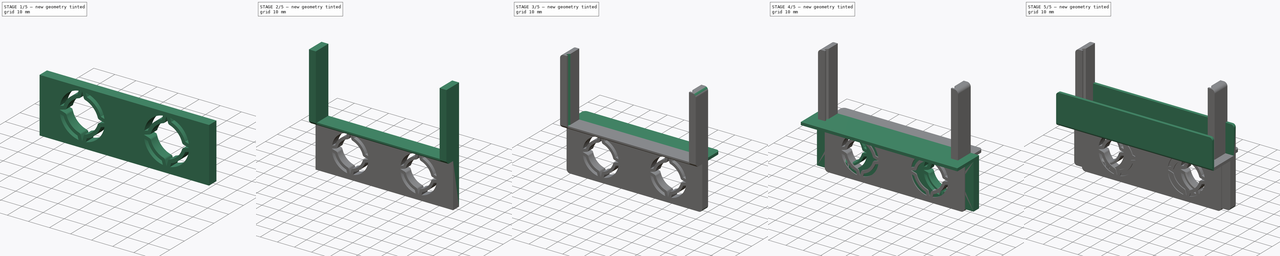
[diagram: build sequence overview — one tinted view per stage of 5, left to right]
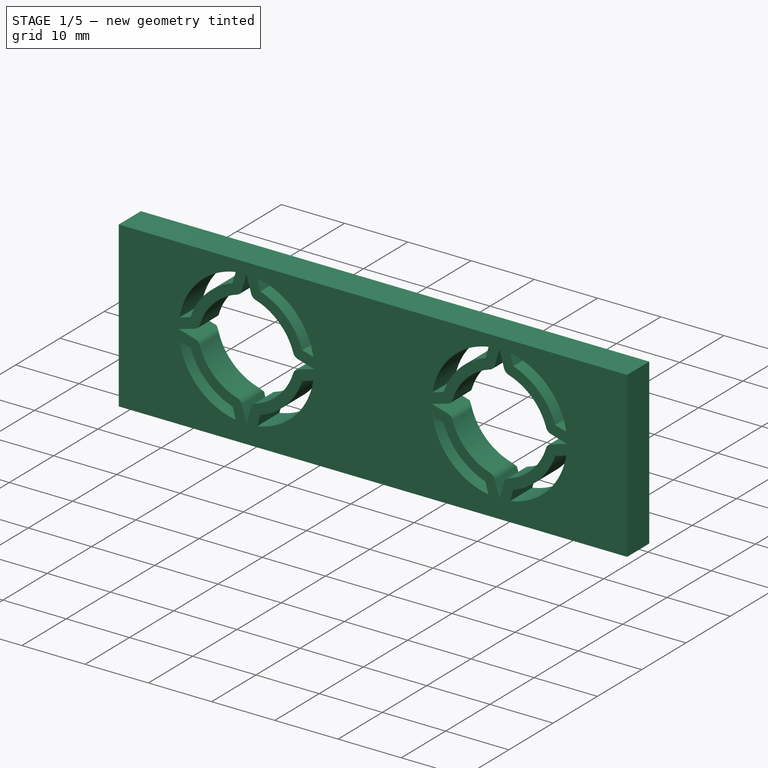
[diagram: stage 1 of 5 — iso view after this stage's code; geometry added in this stage tinted green]
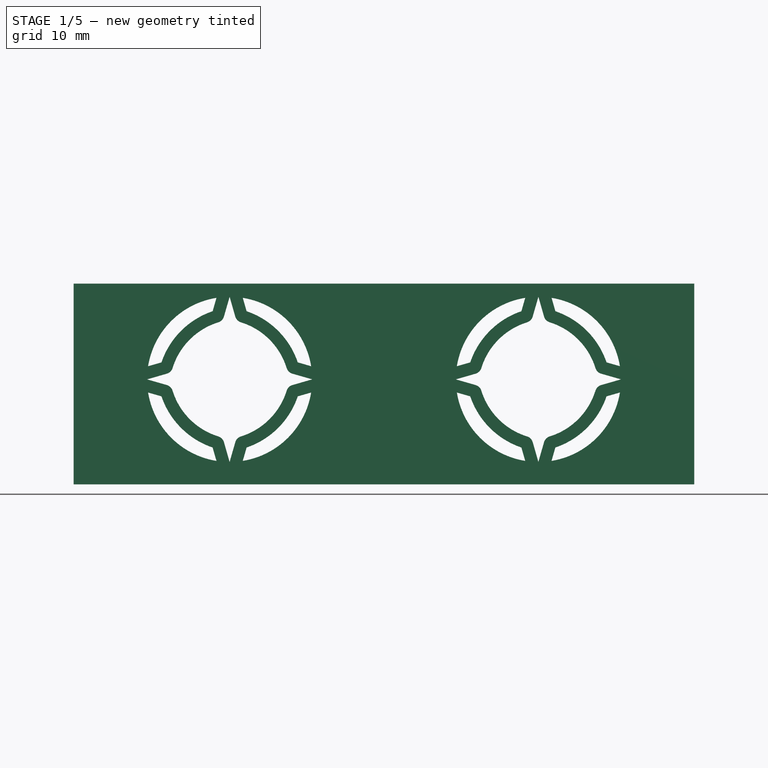
[diagram: stage 1 of 5 — front view after this stage's code; geometry added in this stage tinted green]
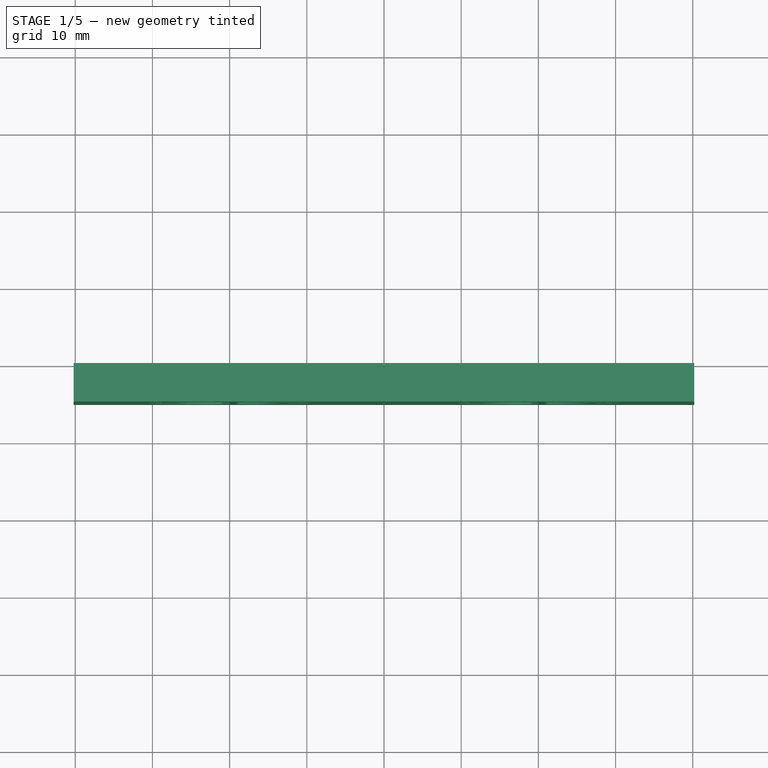
[diagram: stage 1 of 5 — top view after this stage's code; geometry added in this stage tinted green]
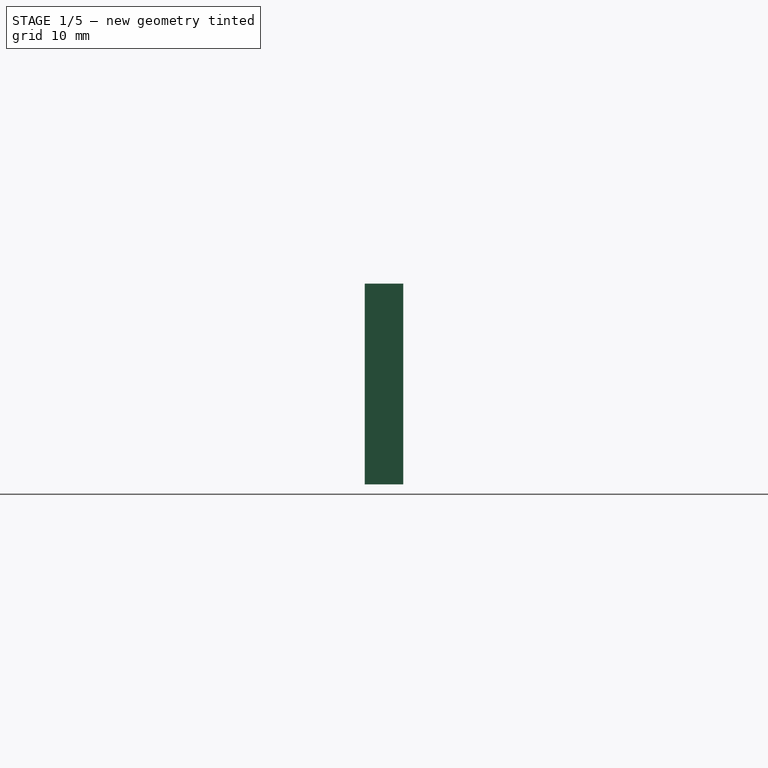
[diagram: stage 1 of 5 — right view after this stage's code; geometry added in this stage tinted green]
FCSTD DOCUMENT  (FreeCAD 0.20R29410 (Git))
Label: USBHubHolder
License: All rights reserved
LicenseURL: http://en.wikipedia.org/wiki/All_rights_reserved
objects: Sketcher::SketchObject×12, PartDesign::Pad×8, PartDesign::SubShapeBinder×4, PartDesign::Chamfer×4, PartDesign::Fillet×4, PartDesign::Body×3, PartDesign::ShapeBinder×2, Spreadsheet::Sheet×1, PartDesign::Pocket×1
note: 55 computed .brp shape members not serialized (recipe doc carries the construction recipe); baked Part::Feature solids carry a one-line shape summary decoded from their .brp

FEATURE [PartDesign::Body] Body001  label="4xUSB3"
  Group = -> [ShapeBinder,Binder,Binder001,Sketch002,Pad,Chamfer,Fillet,Sketch003,Pad001,Sketch004,Pad002,Sketch005,Pad003,Fillet001]
  Origin = -> Origin001
  Tip = -> Fillet001
FEATURE [Sketcher::SketchObject] Sketch006  label="7xusb2"
  FullyConstrained = true
  MapMode = 5
  Placement = pos=(0,0,0) rot=(1,0,0;1.5708rad)
  Support = -> [XZ_Plane]
  sketch-geometry (16):
    g0: LineSegment StartX=40.2 StartY=38 StartZ=0 EndX=40.2 EndY=-1.6 EndZ=0
    g1: LineSegment StartX=40.2 StartY=-1.6 StartZ=0 EndX=-40.2 EndY=-1.6 EndZ=0
    g2: LineSegment StartX=-40.2 StartY=-1.6 StartZ=0 EndX=-40.2 EndY=38 EndZ=0
    g3: LineSegment StartX=-40.2 StartY=-1.6 StartZ=0 EndX=-40.2 EndY=-27.6 EndZ=0
    g4: LineSegment StartX=-40.2 StartY=-27.6 StartZ=0 EndX=40.2 EndY=-27.6 EndZ=0
    g5: LineSegment StartX=40.2 StartY=-27.6 StartZ=0 EndX=40.2 EndY=-1.6 EndZ=0
    g6: LineSegment StartX=-40.2 StartY=0 StartZ=0 EndX=40.2 EndY=0 EndZ=0
    g7: LineSegment StartX=-40.2 StartY=38 StartZ=0 EndX=-37.2 EndY=38 EndZ=0
    g8: LineSegment StartX=-37.2 StartY=38 StartZ=0 EndX=-36.2 EndY=38 EndZ=0
    g9: LineSegment StartX=37.2 StartY=38 StartZ=0 EndX=40.2 EndY=38 EndZ=0
    g10: LineSegment StartX=-36.2 StartY=38 StartZ=0 EndX=36.2 EndY=38 EndZ=0
    g11: LineSegment StartX=36.2 StartY=38 StartZ=0 EndX=37.2 EndY=38 EndZ=0
    g12: LineSegment StartX=-37.2 StartY=38 StartZ=0 EndX=-37.2 EndY=0 EndZ=0
    g13: LineSegment StartX=-36.2 StartY=38 StartZ=0 EndX=-36.2 EndY=0 EndZ=0
    g14: LineSegment StartX=36.2 StartY=38 StartZ=0 EndX=36.2 EndY=0 EndZ=0
    g15: LineSegment StartX=37.2 StartY=38 StartZ=0 EndX=37.2 EndY=0 EndZ=0
  constraints (47):
    c: Coincident(g9,g0)
    c: Coincident(g0,g1)
    c: Coincident(g1,g2)
    c: Coincident(g2,g7)
    c: Horizontal(g1)
    c: Vertical(g0)
    c: Vertical(g2)
    c: Coincident(g1,g3)
    c: Vertical(g3)
    c: Coincident(g3,g4)
    c: Horizontal(g4)
    c: Coincident(g4,g5)
    c: Coincident(g5,g0)
    c: Vertical(g5)
    c: DistanceY(g3,g3) = 26
    c: PointOnObject(g6,g2)
    c: PointOnObject(g6,g0)
    c: Horizontal(g6)
    c: DistanceY(g1,g6) = 1.6
    c: Coincident(g7,g8)
    c: Horizontal(g7)
    c: Coincident(g8,g10)
    c: Horizontal(g8)
    c: Coincident(g11,g9)
    c: Horizontal(g9)
    c: Coincident(g10,g11)
    c: Horizontal(g10)
    c: Horizontal(g11)
    c: Equal(g9,g7)
    c: Equal(g8,g11)
    c: DistanceX(g7,g7) = 3
    c: DistanceX(g8,g8) = 1
    c: DistanceX(g7,g9) = 74.4
    c: Coincident(g12,g7)
    c: Vertical(g12)
    c: Coincident(g13,g8)
    c: Vertical(g13)
    c: Coincident(g14,g10)
    c: Vertical(g14)
    c: Coincident(g15,g9)
    c: Vertical(g15)
    c: Symmetric(g6,g6,g-1)
    c: PointOnObject(g14,g6)
    c: PointOnObject(g15,g6)
    c: PointOnObject(g12,g6)
    c: PointOnObject(g13,g6)
    c: DistanceY(g6,g2) = 38
FEATURE [PartDesign::Body] Body  label="Templates"
  Group = -> [Sketch,Sketch001,Sketch006]
  Origin = -> Origin
FEATURE [PartDesign::ShapeBinder] ShapeBinder001
  Placement = pos=(0,0,0) rot=(1,0,0;1.5708rad)
  Support = -> [Sketch006]
  TraceSupport = false
FEATURE [PartDesign::SubShapeBinder] Binder002
  BindCopyOnChange = 0
  BindMode = 0
  ClaimChildren = false
  Context = -> Body002 [Binder002.]
  Fuse = false
  MakeFace = true
  OffsetFill = false
  OffsetIntersection = false
  OffsetJoinType = 0
  OffsetOpenResult = false
  PartialLoad = false
  Placement = pos=(20,0,-14) rot=(0,0,1;0rad)
  Relative = true
  Support = -> [Body[Sketch001.]]
  _Version = 2
FEATURE [PartDesign::SubShapeBinder] Binder003
  BindCopyOnChange = 0
  BindMode = 0
  ClaimChildren = false
  Context = -> Body002 [Binder003.]
  Fuse = false
  MakeFace = true
  OffsetFill = false
  OffsetIntersection = false
  OffsetJoinType = 0
  OffsetOpenResult = false
  PartialLoad = false
  Placement = pos=(-20,0,-14) rot=(0,0,1;0rad)
  Relative = true
  Support = -> [Body[Sketch001.]]
  _Version = 2
FEATURE [Sketcher::SketchObject] Sketch007
  ExternalGeometry = -> [Binder003,Binder002,ShapeBinder001]
  FullyConstrained = true
  MapMode = 5
  Placement = pos=(0,0,0) rot=(1,0,0;1.5708rad)
  Support = -> [XZ_Plane002]
  sketch-geometry (60):
    g0: ArcOfCircle CenterX=-18.8071 CenterY=-15.1929 CenterZ=0 NormalX=0 NormalY=0 NormalZ=1 AngleXU=0 Radius=8.98695 StartAngle=1.8063 EndAngle=2.90609
    g1: ArcOfCircle CenterX=-18.8071 CenterY=-12.8071 CenterZ=0 NormalX=0 NormalY=0 NormalZ=1 AngleXU=0 Radius=10.5806 StartAngle=3.4681 EndAngle=4.38588
    g2: ArcOfCircle CenterX=-20 CenterY=-14 CenterZ=0 NormalX=0 NormalY=0 NormalZ=1 AngleXU=0 Radius=10.6989 StartAngle=3.30151 EndAngle=4.55247
    g3: ArcOfCircle CenterX=-21.1929 CenterY=-15.1929 CenterZ=0 NormalX=0 NormalY=0 NormalZ=1 AngleXU=0 Radius=8.98695 StartAngle=0.2355 EndAngle=1.3353
    g4: ArcOfCircle CenterX=-18.8071 CenterY=-15.1929 CenterZ=0 NormalX=0 NormalY=0 NormalZ=1 AngleXU=0 Radius=10.5806 StartAngle=1.8973 EndAngle=2.81508
    g5: ArcOfCircle CenterX=-20 CenterY=-14 CenterZ=0 NormalX=0 NormalY=0 NormalZ=1 AngleXU=0 Radius=10.6989 StartAngle=1.73071 EndAngle=2.98168
    g6: ArcOfCircle CenterX=-21.1929 CenterY=-12.8071 CenterZ=0 NormalX=0 NormalY=0 NormalZ=1 AngleXU=0 Radius=8.98695 StartAngle=4.94789 EndAngle=6.04768
    g7: ArcOfCircle CenterX=-21.1929 CenterY=-15.1929 CenterZ=0 NormalX=0 NormalY=0 NormalZ=1 AngleXU=0 Radius=10.5806 StartAngle=0.326508 EndAngle=1.24429
    g8: ArcOfCircle CenterX=-20 CenterY=-14 CenterZ=0 NormalX=0 NormalY=0 NormalZ=1 AngleXU=0 Radius=10.6989 StartAngle=0.159914 EndAngle=1.41088
    g9: ArcOfCircle CenterX=-18.8071 CenterY=-12.8071 CenterZ=0 NormalX=0 NormalY=0 NormalZ=1 AngleXU=0 Radius=8.98695 StartAngle=3.37709 EndAngle=4.47689
    g10: ArcOfCircle CenterX=-21.1929 CenterY=-12.8071 CenterZ=0 NormalX=0 NormalY=0 NormalZ=1 AngleXU=0 Radius=10.5806 StartAngle=5.0389 EndAngle=5.95668
    g11: ArcOfCircle CenterX=-20 CenterY=-14 CenterZ=0 NormalX=0 NormalY=0 NormalZ=1 AngleXU=0 Radius=10.6989 StartAngle=4.8723 EndAngle=6.12327
    g12: ArcOfCircle CenterX=21.1929 CenterY=-15.1929 CenterZ=0 NormalX=0 NormalY=0 NormalZ=1 AngleXU=0 Radius=8.98695 StartAngle=1.8063 EndAngle=2.90609
    g13: ArcOfCircle CenterX=21.1929 CenterY=-12.8071 CenterZ=0 NormalX=0 NormalY=0 NormalZ=1 AngleXU=0 Radius=10.5806 StartAngle=3.4681 EndAngle=4.38588
    g14: ArcOfCircle CenterX=20 CenterY=-14 CenterZ=0 NormalX=0 NormalY=0 NormalZ=1 AngleXU=0 Radius=10.6989 StartAngle=3.30151 EndAngle=4.55247
    g15: ArcOfCircle CenterX=18.8071 CenterY=-15.1929 CenterZ=0 NormalX=0 NormalY=0 NormalZ=1 AngleXU=0 Radius=8.98695 StartAngle=0.2355 EndAngle=1.3353
    g16: ArcOfCircle CenterX=21.1929 CenterY=-15.1929 CenterZ=0 NormalX=0 NormalY=0 NormalZ=1 AngleXU=0 Radius=10.5806 StartAngle=1.8973 EndAngle=2.81508
    g17: ArcOfCircle CenterX=20 CenterY=-14 CenterZ=0 NormalX=0 NormalY=0 NormalZ=1 AngleXU=0 Radius=10.6989 StartAngle=1.73071 EndAngle=2.98168
    g18: ArcOfCircle CenterX=18.8071 CenterY=-12.8071 CenterZ=0 NormalX=0 NormalY=0 NormalZ=1 AngleXU=0 Radius=8.98695 StartAngle=4.94789 EndAngle=6.04768
    g19: ArcOfCircle CenterX=18.8071 CenterY=-15.1929 CenterZ=0 NormalX=0 NormalY=0 NormalZ=1 AngleXU=0 Radius=10.5806 StartAngle=0.326508 EndAngle=1.24429
    g20: ArcOfCircle CenterX=20 CenterY=-14 CenterZ=0 NormalX=0 NormalY=0 NormalZ=1 AngleXU=0 Radius=10.6989 StartAngle=0.159914 EndAngle=1.41088
    g21: ArcOfCircle CenterX=21.1929 CenterY=-12.8071 CenterZ=0 NormalX=0 NormalY=0 NormalZ=1 AngleXU=0 Radius=8.98695 StartAngle=3.37709 EndAngle=4.47689
    g22: ArcOfCircle CenterX=18.8071 CenterY=-12.8071 CenterZ=0 NormalX=0 NormalY=0 NormalZ=1 AngleXU=0 Radius=10.5806 StartAngle=5.0389 EndAngle=5.95668
    g23: ArcOfCircle CenterX=20 CenterY=-14 CenterZ=0 NormalX=0 NormalY=0 NormalZ=1 AngleXU=0 Radius=10.6989 StartAngle=4.8723 EndAngle=6.12327
    g24: LineSegment StartX=-20.9041 StartY=-6.45396 StartZ=0 EndX=-20 EndY=-3.30111 EndZ=0
    g25: LineSegment StartX=-20 StartY=-3.30111 StartZ=0 EndX=-19.0959 EndY=-6.45396 EndZ=0
    g26: LineSegment StartX=-28.8287 StartY=-16.2007 StartZ=0 EndX=-30.5624 EndY=-15.7036 EndZ=0
    g27: LineSegment StartX=-30.5624 StartY=-12.2964 StartZ=0 EndX=-28.8287 EndY=-11.7993 EndZ=0
    g28: LineSegment StartX=-22.2007 StartY=-5.17126 StartZ=0 EndX=-21.7036 EndY=-3.43761 EndZ=0
    g29: LineSegment StartX=-12.454 StartY=-13.0959 StartZ=0 EndX=-9.30111 EndY=-14 EndZ=0
    g30: LineSegment StartX=-9.30111 StartY=-14 StartZ=0 EndX=-12.454 EndY=-14.9041 EndZ=0
    g31: LineSegment StartX=-17.7993 StartY=-5.17126 StartZ=0 EndX=-18.2964 EndY=-3.43761 EndZ=0
    g32: LineSegment StartX=-9.43761 StartY=-12.2964 StartZ=0 EndX=-11.1713 EndY=-11.7993 EndZ=0
    g33: LineSegment StartX=-20.9041 StartY=-21.546 StartZ=0 EndX=-20 EndY=-24.6989 EndZ=0
    g34: LineSegment StartX=-20 StartY=-24.6989 StartZ=0 EndX=-19.0959 EndY=-21.546 EndZ=0
    g35: LineSegment StartX=-11.1713 StartY=-16.2007 StartZ=0 EndX=-9.43761 EndY=-15.7036 EndZ=0
    g36: LineSegment StartX=-18.2964 StartY=-24.5624 StartZ=0 EndX=-17.7993 EndY=-22.8287 EndZ=0
    g37: LineSegment StartX=-21.7036 StartY=-24.5624 StartZ=0 EndX=-22.2007 EndY=-22.8287 EndZ=0
    g38: LineSegment StartX=-27.546 StartY=-13.0959 StartZ=0 EndX=-30.6989 EndY=-14 EndZ=0
    g39: LineSegment StartX=-30.6989 StartY=-14 StartZ=0 EndX=-27.546 EndY=-14.9041 EndZ=0
    g40: LineSegment StartX=-40.2 StartY=-1.6 StartZ=0 EndX=40.2 EndY=-1.6 EndZ=0
    g41: LineSegment StartX=40.2 StartY=-1.6 StartZ=0 EndX=40.2 EndY=-27.6 EndZ=0
    g42: LineSegment StartX=40.2 StartY=-27.6 StartZ=0 EndX=-40.2 EndY=-27.6 EndZ=0
    g43: LineSegment StartX=-40.2 StartY=-27.6 StartZ=0 EndX=-40.2 EndY=-1.6 EndZ=0
    g44: LineSegment StartX=17.7993 StartY=-5.17126 StartZ=0 EndX=18.2964 EndY=-3.43761 EndZ=0
    g45: LineSegment StartX=27.546 StartY=-13.0959 StartZ=0 EndX=30.6989 EndY=-14 EndZ=0
    g46: LineSegment StartX=30.6989 StartY=-14 StartZ=0 EndX=27.546 EndY=-14.9041 EndZ=0
    g47: LineSegment StartX=22.2007 StartY=-5.17126 StartZ=0 EndX=21.7036 EndY=-3.43761 EndZ=0
    g48: LineSegment StartX=30.5624 StartY=-12.2964 StartZ=0 EndX=28.8287 EndY=-11.7993 EndZ=0
    g49: LineSegment StartX=20.9041 StartY=-21.546 StartZ=0 EndX=20 EndY=-24.6989 EndZ=0
    g50: LineSegment StartX=20 StartY=-24.6989 StartZ=0 EndX=19.0959 EndY=-21.546 EndZ=0
    g51: LineSegment StartX=30.5624 StartY=-15.7036 StartZ=0 EndX=28.8287 EndY=-16.2007 EndZ=0
    g52: LineSegment StartX=21.7036 StartY=-24.5624 StartZ=0 EndX=22.2007 EndY=-22.8287 EndZ=0
    g53: LineSegment StartX=12.454 StartY=-14.9041 StartZ=0 EndX=9.30111 EndY=-14 EndZ=0
    g54: LineSegment StartX=9.30111 StartY=-14 StartZ=0 EndX=12.454 EndY=-13.0959 EndZ=0
    g55: LineSegment StartX=18.2964 StartY=-24.5624 StartZ=0 EndX=17.7993 EndY=-22.8287 EndZ=0
    g56: LineSegment StartX=11.1713 StartY=-16.2007 StartZ=0 EndX=9.43761 EndY=-15.7036 EndZ=0
    g57: LineSegment StartX=19.0959 StartY=-6.45396 StartZ=0 EndX=20 EndY=-3.30111 EndZ=0
    g58: LineSegment StartX=20 StartY=-3.30111 StartZ=0 EndX=20.9041 EndY=-6.45396 EndZ=0
    g59: LineSegment StartX=9.43761 StartY=-12.2964 StartZ=0 EndX=11.1713 EndY=-11.7993 EndZ=0
  constraints (144):
    c: Coincident(g0,g-14)
    c: Coincident(g0,g-14)
    c: Coincident(g1,g-15)
    c: Coincident(g1,g-15)
    c: Coincident(g2,g-16)
    c: Coincident(g2,g-16)
    c: Coincident(g3,g-17)
    c: Coincident(g3,g-17)
    c: Coincident(g4,g-18)
    c: Coincident(g4,g-18)
    c: Coincident(g5,g-19)
    c: Coincident(g5,g-19)
    c: Coincident(g6,g-20)
    c: Coincident(g6,g-20)
    c: Coincident(g7,g-21)
    c: Coincident(g7,g-21)
    c: Coincident(g8,g-22)
    c: Coincident(g8,g-22)
    c: Coincident(g9,g-11)
    c: Coincident(g9,g-11)
    c: Coincident(g10,g-12)
    c: Coincident(g10,g-12)
    c: Coincident(g11,g-13)
    c: Coincident(g11,g-13)
    c: Coincident(g12,g-26)
    c: Coincident(g12,g-26)
    c: Coincident(g13,g-27)
    c: Coincident(g13,g-27)
    c: Coincident(g14,g-28)
    c: Coincident(g14,g-28)
    c: Coincident(g15,g-31)
    c: Coincident(g15,g-31)
    c: Coincident(g16,g-29)
    c: Coincident(g16,g-29)
    c: Coincident(g17,g-30)
    c: Coincident(g17,g-30)
    c: Coincident(g18,g-32)
    c: Coincident(g18,g-32)
    c: Coincident(g19,g-33)
    c: Coincident(g19,g-33)
    c: Coincident(g20,g-34)
    c: Coincident(g20,g-34)
    c: Coincident(g21,g-23)
    c: Coincident(g21,g-23)
    c: Coincident(g22,g-24)
    c: Coincident(g22,g-24)
    c: Coincident(g23,g-25)
    c: Coincident(g23,g-25)
    c: Equal(g-26,g12)
    c: Equal(g-27,g13)
    c: Equal(g-28,g14)
    c: Equal(g-31,g15)
    c: Equal(g-29,g16)
    c: Equal(g-30,g17)
    c: Equal(g-32,g18)
    c: Equal(g-33,g19)
    c: Equal(g-34,g20)
    c: Equal(g-23,g21)
    c: Equal(g-24,g22)
    c: Equal(g-25,g23)
    c: Equal(g-20,g6)
    c: Equal(g-21,g7)
    c: Equal(g-22,g8)
    c: Equal(g-19,g5)
    c: Equal(g-18,g4)
    c: Equal(g-17,g3)
    c: Equal(g-14,g0)
    c: Equal(g-15,g1)
    c: Equal(g-16,g2)
    c: Equal(g-13,g11)
    c: Equal(g-12,g10)
    c: Equal(g-11,g9)
    c: Coincident(g24,g0)
    c: Coincident(g24,g-3)
    c: Coincident(g25,g24)
    c: Coincident(g25,g3)
    c: Coincident(g26,g1)
    c: Coincident(g26,g2)
    c: Coincident(g27,g5)
    c: Coincident(g27,g4)
    c: Coincident(g28,g4)
    c: Coincident(g28,g5)
    c: Coincident(g29,g3)
    c: Coincident(g29,g-6)
    c: Coincident(g30,g29)
    c: Coincident(g30,g6)
    c: Coincident(g31,g7)
    c: Coincident(g31,g8)
    c: Coincident(g32,g8)
    c: Coincident(g32,g7)
    c: Coincident(g33,g9)
    c: Coincident(g33,g-5)
    c: Coincident(g34,g33)
    c: Coincident(g34,g6)
    c: Coincident(g35,g10)
    c: Coincident(g35,g11)
    c: Coincident(g36,g11)
    c: Coincident(g36,g10)
    c: Coincident(g37,g2)
    c: Coincident(g37,g1)
    c: Coincident(g38,g0)
    c: Coincident(g38,g-4)
    c: Coincident(g39,g38)
    c: Coincident(g39,g9)
    c: Coincident(g-35,g40)
    c: Coincident(g40,g-35)
    c: Coincident(g40,g41)
    c: Coincident(g41,g-36)
    c: Coincident(g41,g42)
    c: Coincident(g42,g-36)
    c: Coincident(g42,g43)
    c: Coincident(g43,g40)
    c: Coincident(g44,g16)
    c: Coincident(g44,g17)
    c: Coincident(g45,g15)
    c: Coincident(g45,g-9)
    c: Coincident(g46,g45)
    c: Coincident(g46,g18)
    c: Coincident(g47,g19)
    c: Coincident(g47,g20)
    c: Coincident(g48,g20)
    c: Coincident(g48,g19)
    c: Coincident(g49,g18)
    c: Coincident(g49,g-10)
    c: Coincident(g50,g49)
    c: Coincident(g50,g21)
    c: Coincident(g51,g23)
    c: Coincident(g51,g22)
    c: Coincident(g52,g23)
    c: Coincident(g52,g22)
    c: Coincident(g53,g21)
    c: Coincident(g53,g-7)
    c: Coincident(g54,g53)
    c: Coincident(g54,g12)
    c: Coincident(g55,g14)
    c: Coincident(g55,g13)
    c: Coincident(g56,g13)
    c: Coincident(g56,g14)
    c: Coincident(g57,g12)
    c: Coincident(g57,g-8)
    c: Coincident(g58,g57)
    c: Coincident(g58,g15)
    c: Coincident(g59,g17)
    c: Coincident(g59,g16)
FEATURE [Sketcher::SketchObject] Sketch008
  ExternalGeometry = -> [ShapeBinder001]
  FullyConstrained = true
  MapMode = 5
  Placement = pos=(0,0,0) rot=(1,0,0;1.5708rad)
  Support = -> [XZ_Plane002]
  sketch-geometry (4):
    g0: LineSegment StartX=-40.2 StartY=0 StartZ=0 EndX=40.2 EndY=0 EndZ=0
    g1: LineSegment StartX=40.2 StartY=0 StartZ=0 EndX=40.2 EndY=-1.6 EndZ=0
    g2: LineSegment StartX=40.2 StartY=-1.6 StartZ=0 EndX=-40.2 EndY=-1.6 EndZ=0
    g3: LineSegment StartX=-40.2 StartY=-1.6 StartZ=0 EndX=-40.2 EndY=0 EndZ=0
  constraints (8):
    c: Coincident(g0,g1)
    c: Coincident(g1,g2)
    c: Coincident(g2,g3)
    c: Coincident(g3,g0)
    c: Coincident(g0,g-4)
    c: Coincident(g1,g-3)
    c: Coincident(g0,g-4)
    c: Coincident(g2,g-3)
FEATURE [Sketcher::SketchObject] Sketch009
  ExternalGeometry = -> [ShapeBinder001]
  FullyConstrained = true
  MapMode = 5
  Placement = pos=(0,0,0) rot=(1,0,0;1.5708rad)
  Support = -> [XZ_Plane002]
  sketch-geometry (8):
    g0: LineSegment StartX=-40.2 StartY=38 StartZ=0 EndX=-36.2 EndY=38 EndZ=0
    g1: LineSegment StartX=-36.2 StartY=38 StartZ=0 EndX=-36.2 EndY=0 EndZ=0
    g2: LineSegment StartX=-40.2 StartY=-1.6 StartZ=0 EndX=-40.2 EndY=38 EndZ=0
    g3: LineSegment StartX=40.2 StartY=38 StartZ=0 EndX=36.2 EndY=38 EndZ=0
    g4: LineSegment StartX=36.2 StartY=38 StartZ=0 EndX=36.2 EndY=0 EndZ=0
    g5: LineSegment StartX=40.2 StartY=-1.6 StartZ=0 EndX=40.2 EndY=38 EndZ=0
    g6: LineSegment StartX=-40.2 StartY=-1.6 StartZ=0 EndX=40.2 EndY=-1.6 EndZ=0
    g7: LineSegment StartX=-36.2 StartY=0 StartZ=0 EndX=36.2 EndY=0 EndZ=0
  constraints (16):
    c: Coincident(g0,g1)
    c: Coincident(g2,g0)
    c: Coincident(g0,g-4)
    c: Coincident(g3,g4)
    c: Coincident(g5,g3)
    c: Coincident(g3,g-5)
    c: Coincident(g2,g-6)
    c: Coincident(g5,g-6)
    c: Coincident(g6,g2)
    c: Coincident(g6,g5)
    c: Coincident(g3,g-8)
    c: Coincident(g0,g-7)
    c: Coincident(g1,g-7)
    c: Coincident(g4,g-8)
    c: Coincident(g7,g1)
    c: Coincident(g7,g4)
FEATURE [Sketcher::SketchObject] Sketch010
  ExternalGeometry = -> [ShapeBinder001]
  FullyConstrained = true
  MapMode = 5
  Support = -> [XY_Plane002]
  expr: Constraints[1] = <<Pad005>>.Length
  sketch-geometry (10):
    g0: LineSegment StartX=-37.2 StartY=-9.5 StartZ=0 EndX=37.2 EndY=-9.5 EndZ=0
    g1: LineSegment StartX=-37.2 StartY=4.011e-13 StartZ=0 EndX=-37.2 EndY=-8.5 EndZ=0
    g2: LineSegment StartX=-37.2 StartY=-8.5 StartZ=0 EndX=-37.2 EndY=-9.5 EndZ=0
    g3: LineSegment StartX=37.2 StartY=0 StartZ=0 EndX=37.2 EndY=-8.5 EndZ=0
    g4: LineSegment StartX=37.2 StartY=-8.5 StartZ=0 EndX=37.2 EndY=-9.5 EndZ=0
    g5: LineSegment StartX=-37.2 StartY=-8.5 StartZ=0 EndX=-36.2 EndY=-8.5 EndZ=0
    g6: LineSegment StartX=-36.2 StartY=-8.5 StartZ=0 EndX=-36.2 EndY=-7.5 EndZ=0
    g7: LineSegment StartX=-37.2 StartY=-8.5 StartZ=0 EndX=-36.2 EndY=-7.5 EndZ=0
    g8: LineSegment StartX=-36.2 StartY=-7.5 StartZ=0 EndX=36.2 EndY=-7.5 EndZ=0
    g9: LineSegment StartX=36.2 StartY=-7.5 StartZ=0 EndX=37.2 EndY=-8.5 EndZ=0
  constraints (27):
    c: Coincident(g1,g-3)
    c: DistanceY(g2,g1) = 9.5
    c: Coincident(g0,g2)
    c: Coincident(g0,g4)
    c: Horizontal(g0)
    c: Coincident(g1,g2)
    c: Vertical(g1)
    c: Vertical(g2)
    c: DistanceY(g2,g2) = 1
    c: Coincident(g3,g4)
    c: Vertical(g3)
    c: Vertical(g4)
    c: Equal(g4,g2)
    c: Coincident(g2,g5)
    c: Horizontal(g5)
    c: Coincident(g5,g6)
    c: Vertical(g6)
    c: PointOnObject(g-3,g6)
    c: Equal(g6,g5)
    c: Coincident(g7,g2)
    c: Coincident(g7,g6)
    c: Coincident(g8,g7)
    c: Horizontal(g8)
    c: Coincident(g9,g8)
    c: Coincident(g9,g4)
    c: Equal(g9,g7)
    c: Coincident(g3,g-4)
FEATURE [PartDesign::Pad] Pad004
  Direction = (0,-1,-2e-16)
  Length = 5
  Length2 = 10
  Placement = pos=(0,0,0) rot=(1,0,0;1.5708rad)
  Profile = -> Sketch007
  ReferenceAxis = -> Sketch007 [N_Axis]
  Type = 0
FEATURE [Sketcher::SketchObject] Sketch011
  AttachmentOffset = pos=(0,0,9.5) rot=(0,0,1;0rad)
  ExternalGeometry = -> [ShapeBinder001]
  FullyConstrained = true
  MapMode = 5
  Placement = pos=(0,-9.5,-2.1e-15) rot=(1,0,0;1.5708rad)
  Support = -> [XZ_Plane002]
  expr: .AttachmentOffset.Base.z = <<Pad005>>.Length
  sketch-geometry (8):
    g0: LineSegment StartX=-40.2 StartY=38 StartZ=0 EndX=-36.2 EndY=38 EndZ=0
    g1: LineSegment StartX=-36.2 StartY=38 StartZ=0 EndX=-36.2 EndY=0 EndZ=0
    g2: LineSegment StartX=-40.2 StartY=0 StartZ=0 EndX=-40.2 EndY=38 EndZ=0
    g3: LineSegment StartX=40.2 StartY=38 StartZ=0 EndX=36.2 EndY=38 EndZ=0
    g4: LineSegment StartX=36.2 StartY=38 StartZ=0 EndX=36.2 EndY=0 EndZ=0
    g5: LineSegment StartX=40.2 StartY=0 StartZ=0 EndX=40.2 EndY=38 EndZ=0
    g6: LineSegment StartX=-40.2 StartY=0 StartZ=0 EndX=-36.2 EndY=0 EndZ=0
    g7: LineSegment StartX=40.2 StartY=0 StartZ=0 EndX=36.2 EndY=0 EndZ=0
  constraints (16):
    c: Coincident(g0,g1)
    c: Coincident(g2,g0)
    c: Coincident(g0,g-4)
    c: Coincident(g3,g4)
    c: Coincident(g5,g3)
    c: Coincident(g3,g-5)
    c: Coincident(g3,g-7)
    c: Coincident(g0,g-6)
    c: Coincident(g1,g-6)
    c: Coincident(g4,g-7)
    c: Coincident(g5,g-3)
    c: Coincident(g2,g-3)
    c: Coincident(g6,g2)
    c: Coincident(g6,g1)
    c: Coincident(g7,g5)
    c: Coincident(g7,g4)
FEATURE [PartDesign::Chamfer] Chamfer002
  Angle = 45
  Base = -> Pad004 [Edge72,Edge63,Edge54,Edge81,Edge24,Edge33,Edge42,Edge15]
  BaseFeature = -> Pad004
  ChamferType = 0
  FlipDirection = false
  Placement = pos=(0,0,0) rot=(1,0,0;1.5708rad)
  Size = 0.6
  Size2 = 1
  SupportTransform = false
  UseAllEdges = false
FEATURE [PartDesign::Fillet] Fillet002
  Base = -> Chamfer002 [Edge153,Edge156,Edge149,Edge171,Edge168,Edge165,Edge162,Edge159,Edge4,Edge134,Edge1,Edge128,Edge146,Edge143,Edge140,Edge137]
  BaseFeature = -> Chamfer002
  Placement = pos=(0,0,0) rot=(1,0,0;1.5708rad)
  Radius = 1.1
  SupportTransform = false
  UseAllEdges = false
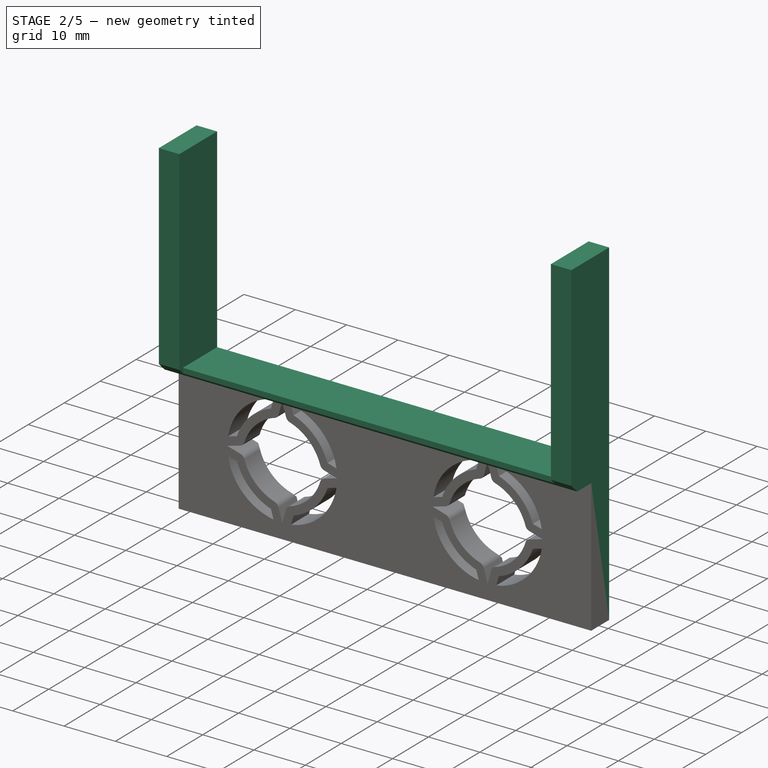
[diagram: stage 2 of 5 — iso view after this stage's code; geometry added in this stage tinted green]
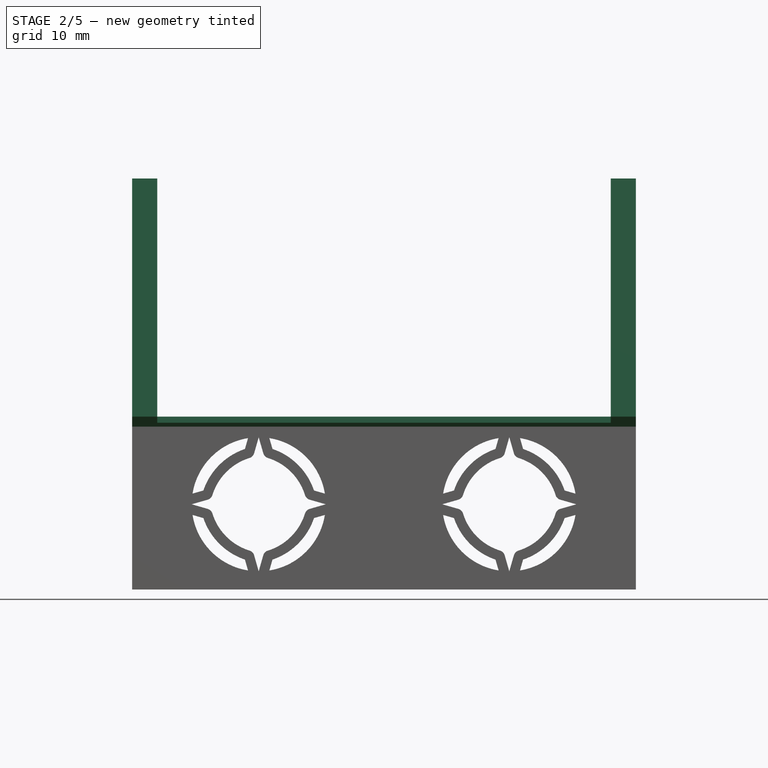
[diagram: stage 2 of 5 — front view after this stage's code; geometry added in this stage tinted green]
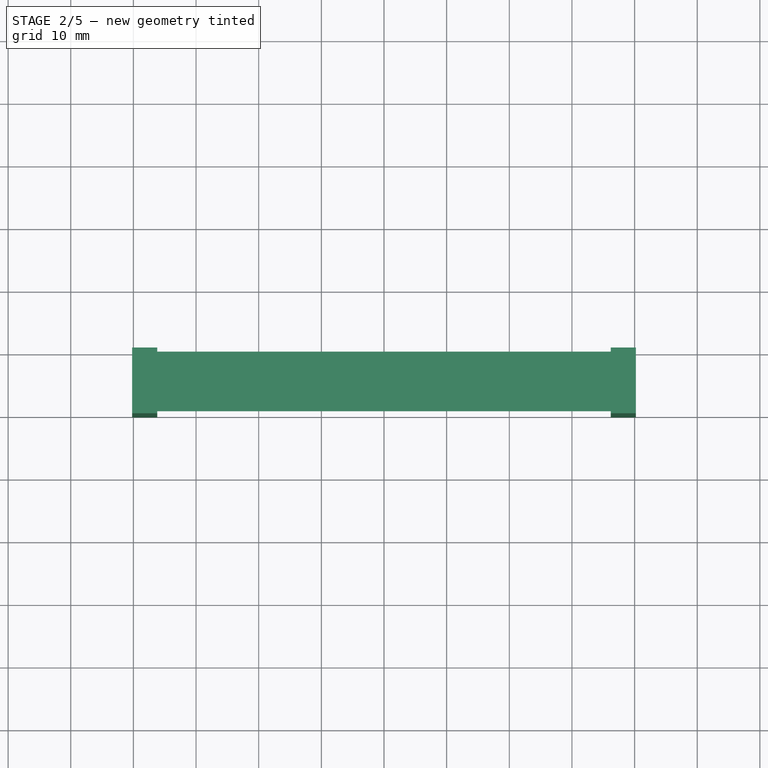
[diagram: stage 2 of 5 — top view after this stage's code; geometry added in this stage tinted green]
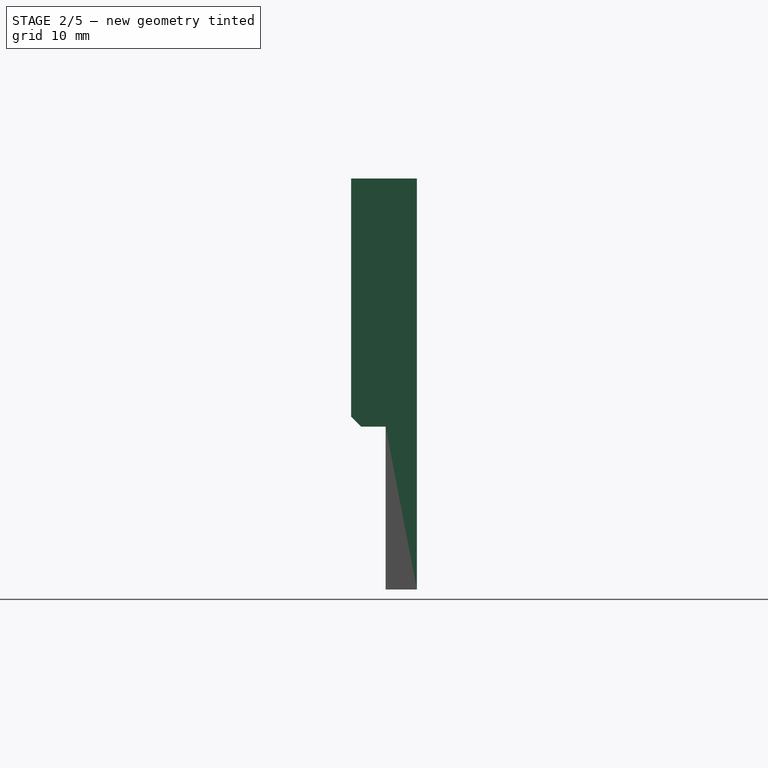
[diagram: stage 2 of 5 — right view after this stage's code; geometry added in this stage tinted green]
FEATURE [PartDesign::Pad] Pad005
  BaseFeature = -> Fillet002
  Direction = (0,-1,-2e-16)
  Length = 9.5
  Length2 = 10
  Placement = pos=(0,0,0) rot=(1,0,0;1.5708rad)
  Profile = -> Sketch009
  ReferenceAxis = -> Sketch009 [N_Axis]
  Type = 0
FEATURE [PartDesign::Pad] Pad006
  BaseFeature = -> Pad005
  Direction = (0,-1,-2e-16)
  Length = 1
  Length2 = 10
  Placement = pos=(0,0,0) rot=(1,0,0;1.5708rad)
  Profile = -> Sketch011
  ReferenceAxis = -> Sketch011 [N_Axis]
  Refine = true
  Type = 0
FEATURE [PartDesign::Chamfer] Chamfer001
  Angle = 45
  Base = -> Pad006 [Edge254,Edge252]
  BaseFeature = -> Pad006
  ChamferType = 0
  FlipDirection = false
  Placement = pos=(0,0,0) rot=(1,0,0;1.5708rad)
  Size = 0.99
  Size2 = 1
  SupportTransform = false
  UseAllEdges = false
FEATURE [PartDesign::Chamfer] Chamfer003
  Angle = 45
  Base = -> Chamfer001 [Edge3]
  BaseFeature = -> Chamfer001
  ChamferType = 0
  FlipDirection = false
  Placement = pos=(0,0,0) rot=(1,0,0;1.5708rad)
  Size = 0.6099
  Size2 = 1
  SupportTransform = false
  UseAllEdges = false
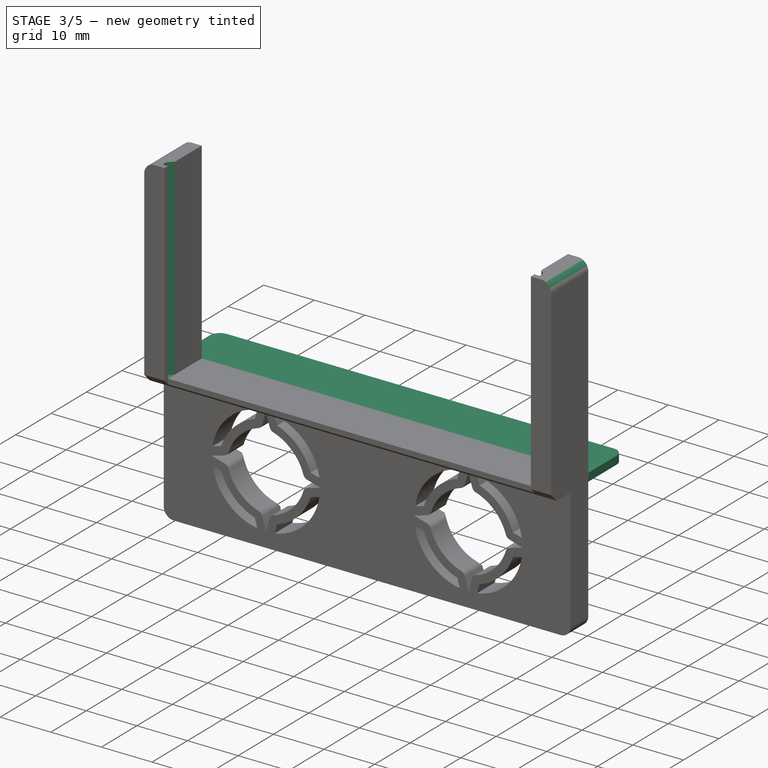
[diagram: stage 3 of 5 — iso view after this stage's code; geometry added in this stage tinted green]
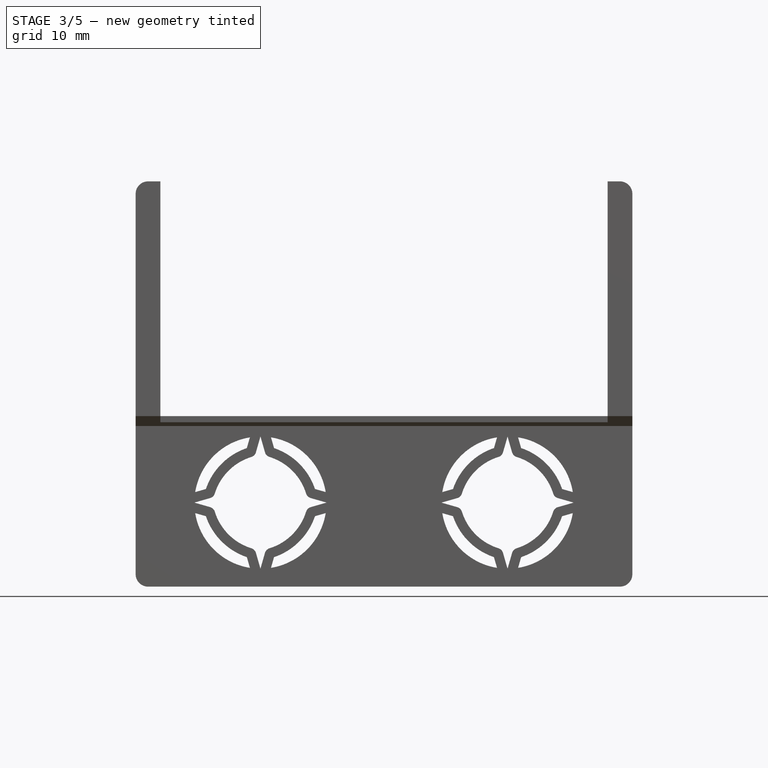
[diagram: stage 3 of 5 — front view after this stage's code; geometry added in this stage tinted green]
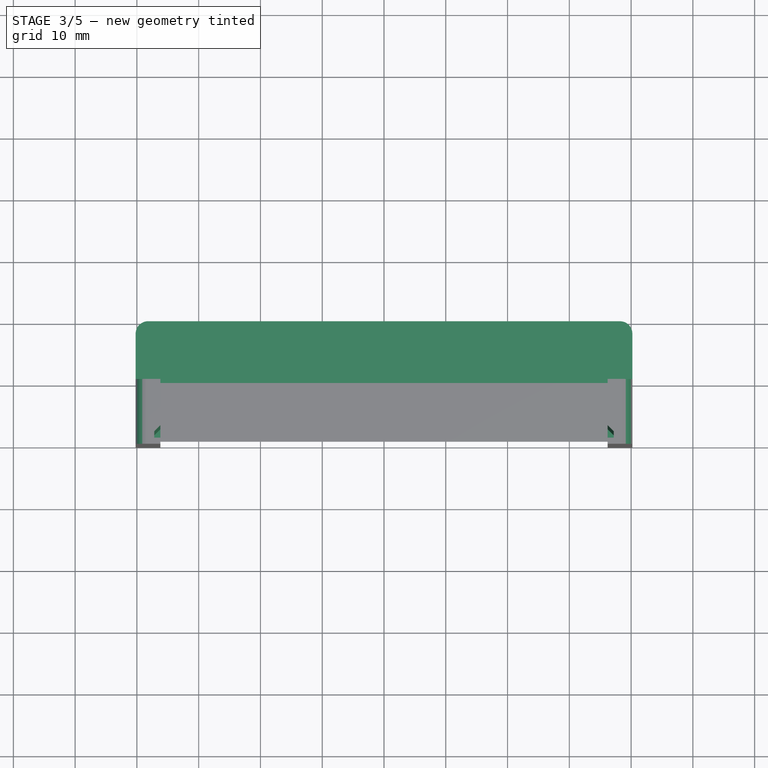
[diagram: stage 3 of 5 — top view after this stage's code; geometry added in this stage tinted green]
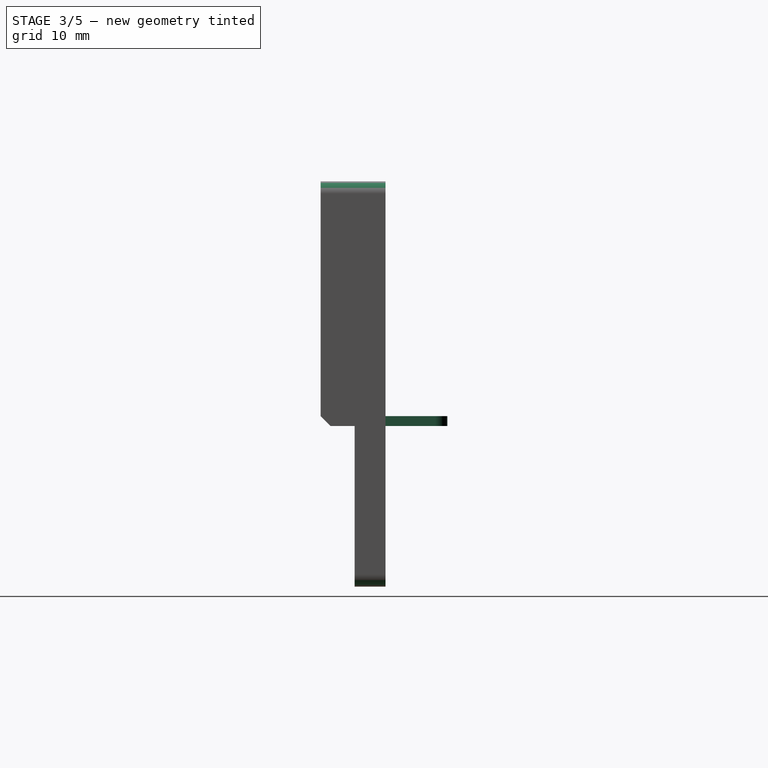
[diagram: stage 3 of 5 — right view after this stage's code; geometry added in this stage tinted green]
FEATURE [PartDesign::Pocket] Pocket
  BaseFeature = -> Chamfer003
  Direction = (0,0,-1)
  Length = 5
  Length2 = 5
  Placement = pos=(0,0,0) rot=(1,0,0;1.5708rad)
  Profile = -> Sketch010
  ReferenceAxis = -> Sketch010 [N_Axis]
  Reversed = true
  Type = 1
FEATURE [PartDesign::Pad] Pad007
  BaseFeature = -> Pocket
  Direction = (0,-1,-2e-16)
  Length = 10
  Length2 = 10
  Placement = pos=(0,0,0) rot=(1,0,0;1.5708rad)
  Profile = -> Sketch008
  ReferenceAxis = -> Sketch008 [N_Axis]
  Refine = true
  Reversed = true
  Type = 0
FEATURE [PartDesign::Fillet] Fillet003
  Base = -> Pad007 [Edge318,Edge317,Edge188,Edge111,Edge108,Edge109]
  BaseFeature = -> Pad007
  Placement = pos=(0,0,0) rot=(1,0,0;1.5708rad)
  Radius = 2
  SupportTransform = false
  UseAllEdges = false
FEATURE [PartDesign::Body] Body002  label="7xUSB2"
  Group = -> [ShapeBinder001,Binder002,Binder003,Sketch007,Sketch008,Sketch009,Sketch010,Pad004,Chamfer002,Fillet002,Pad005,Sketch011,Pad006,Chamfer001,Chamfer003,Pocket,Pad007,Fillet003]
  Origin = -> Origin002
  Tip = -> Fillet003
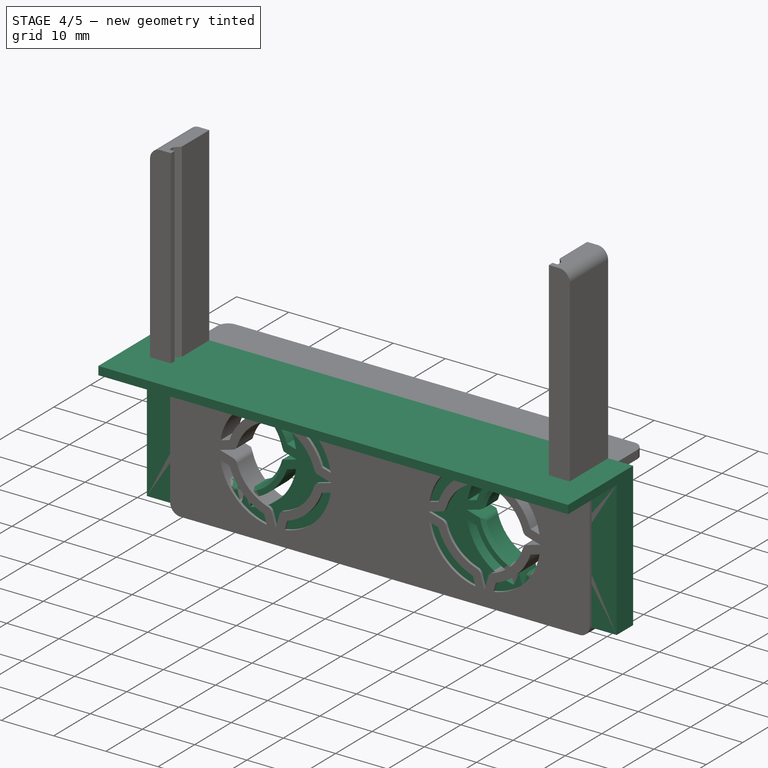
[diagram: stage 4 of 5 — iso view after this stage's code; geometry added in this stage tinted green]
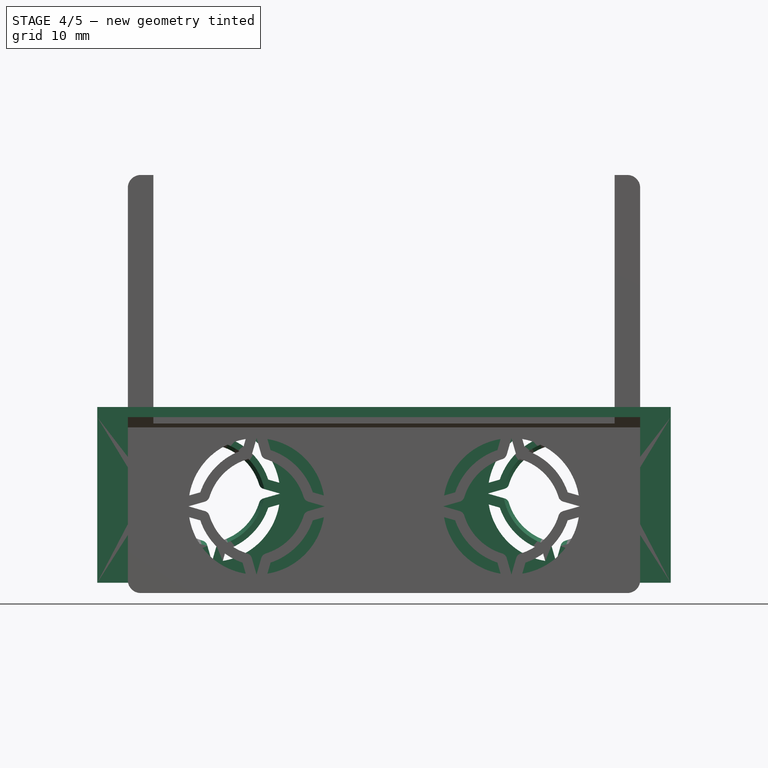
[diagram: stage 4 of 5 — front view after this stage's code; geometry added in this stage tinted green]
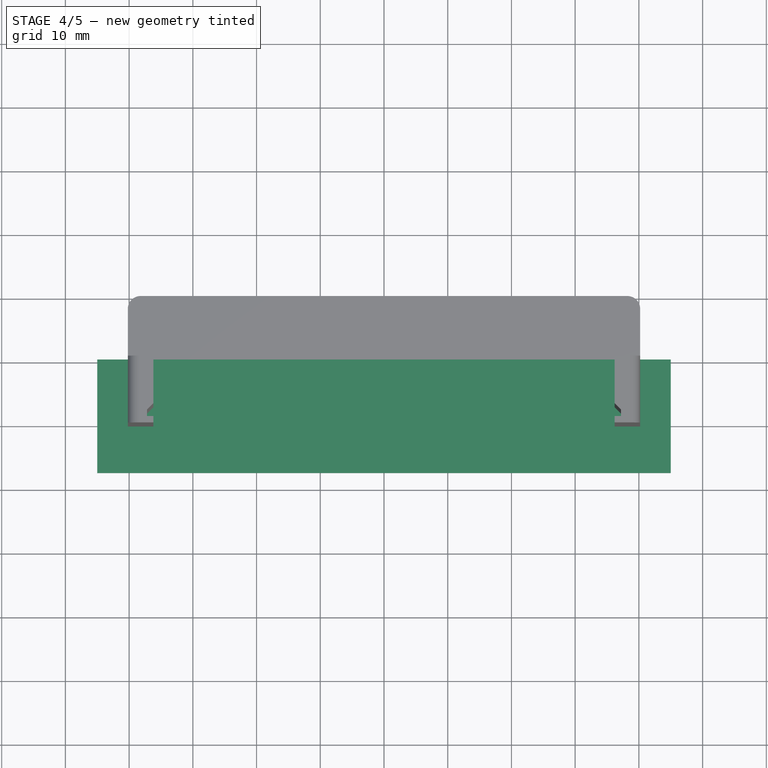
[diagram: stage 4 of 5 — top view after this stage's code; geometry added in this stage tinted green]
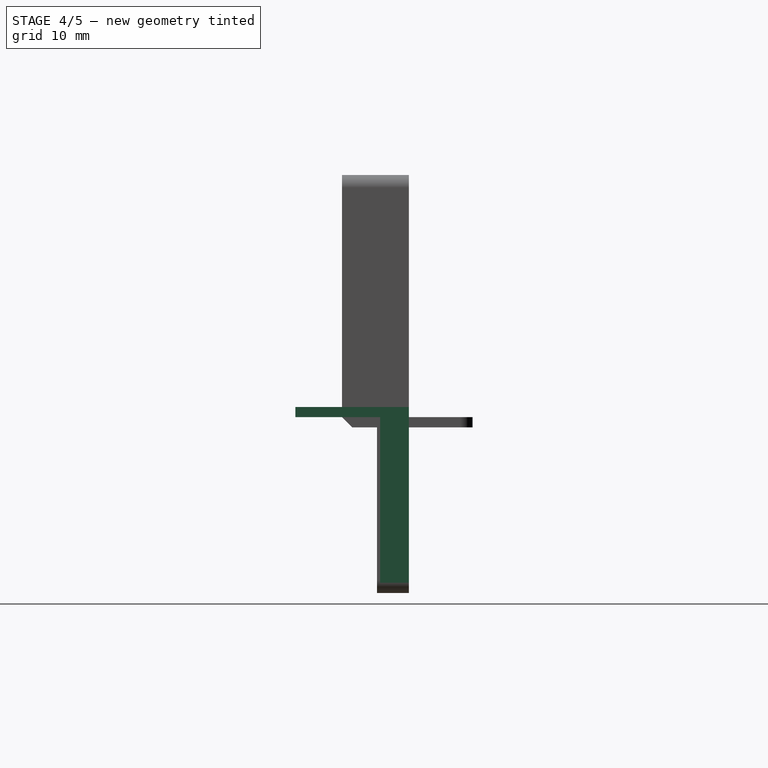
[diagram: stage 4 of 5 — right view after this stage's code; geometry added in this stage tinted green]
FEATURE [Spreadsheet::Sheet] Spreadsheet
  cells = B2=LockInnerRadius; C2(LockInnerRadius)=; B3=LockOuterRadius; C3(LocckOuterRadius)=
FEATURE [Sketcher::SketchObject] Sketch  label="4xusb3"
  FullyConstrained = true
  MapMode = 5
  Placement = pos=(0,0,0) rot=(1,0,0;1.5708rad)
  Support = -> [XZ_Plane]
  sketch-geometry (8):
    g0: LineSegment StartX=-45 StartY=17.6 StartZ=0 EndX=45 EndY=17.6 EndZ=0
    g1: LineSegment StartX=45 StartY=17.6 StartZ=0 EndX=45 EndY=3.9261e-11 EndZ=0
    g2: LineSegment StartX=45 StartY=3.92616e-11 StartZ=0 EndX=-45 EndY=3.92616e-11 EndZ=0
    g3: LineSegment StartX=-45 StartY=3.92616e-11 StartZ=0 EndX=-45 EndY=17.6 EndZ=0
    g4: LineSegment StartX=-45 StartY=3.92616e-11 StartZ=0 EndX=-45 EndY=-26 EndZ=0
    g5: LineSegment StartX=-45 StartY=-26 StartZ=0 EndX=45 EndY=-26 EndZ=0
    g6: LineSegment StartX=45 StartY=-26 StartZ=0 EndX=45 EndY=3.9261e-11 EndZ=0
    g7: LineSegment StartX=-45 StartY=1.6 StartZ=0 EndX=45 EndY=1.6 EndZ=0
  constraints (23):
    c: Coincident(g0,g1)
    c: Coincident(g1,g2)
    c: Coincident(g2,g3)
    c: Coincident(g3,g0)
    c: Horizontal(g0)
    c: Horizontal(g2)
    c: Vertical(g1)
    c: Vertical(g3)
    c: Coincident(g2,g4)
    c: Vertical(g4)
    c: Coincident(g4,g5)
    c: Horizontal(g5)
    c: Coincident(g5,g6)
    c: Coincident(g6,g1)
    c: Vertical(g6)
    c: DistanceY(g4,g4) = 26
    c: DistanceX(g0,g0) = 90
    c: DistanceY(g3,g3) = 17.6
    c: Symmetric(g2,g1,g-1)
    c: PointOnObject(g7,g3)
    c: PointOnObject(g7,g1)
    c: Horizontal(g7)
    c: DistanceY(g2,g7) = 1.6
FEATURE [Sketcher::SketchObject] Sketch001  label="magnetholder"
  FullyConstrained = true
  MapMode = 5
  Placement = pos=(0,0,0) rot=(1,0,0;1.5708rad)
  Support = -> [XZ_Plane]
  sketch-geometry (43):
    g0: ArcOfCircle CenterX=5.3e-15 CenterY=-2e-15 CenterZ=0 NormalX=0 NormalY=0 NormalZ=1 AngleXU=0 Radius=10.6989 StartAngle=1.73071 EndAngle=2.98168
    g1: ArcOfCircle CenterX=5.3e-15 CenterY=-2e-15 CenterZ=0 NormalX=0 NormalY=0 NormalZ=1 AngleXU=0 Radius=10.6989 StartAngle=3.30151 EndAngle=4.55247
    g2: ArcOfCircle CenterX=5.3e-15 CenterY=-2e-15 CenterZ=0 NormalX=0 NormalY=0 NormalZ=1 AngleXU=0 Radius=10.6989 StartAngle=4.8723 EndAngle=6.12327
    g3: ArcOfCircle CenterX=5.3e-15 CenterY=-2e-15 CenterZ=0 NormalX=0 NormalY=0 NormalZ=1 AngleXU=0 Radius=10.6989 StartAngle=0.159914 EndAngle=1.41088
    g4: LineSegment StartX=1.704e-12 StartY=10.6989 StartZ=0 EndX=1.704e-12 EndY=-10.6989 EndZ=0
    g5: LineSegment StartX=-10.6989 StartY=-3.211e-13 StartZ=0 EndX=10.6989 EndY=-3.211e-13 EndZ=0
    g6: LineSegment StartX=-1.70362 StartY=10.5624 StartZ=0 EndX=1.70362 EndY=10.5624 EndZ=0
    g7: LineSegment StartX=-10.5624 StartY=1.70362 StartZ=0 EndX=-10.5624 EndY=-1.70362 EndZ=0
    g8: LineSegment StartX=-1.70362 StartY=-10.5624 StartZ=0 EndX=1.70362 EndY=-10.5624 EndZ=0
    g9: LineSegment StartX=10.5624 StartY=-1.70362 StartZ=0 EndX=10.5624 EndY=1.70362 EndZ=0
    g10: Circle CenterX=5.3e-15 CenterY=-2e-15 CenterZ=0 NormalX=0 NormalY=0 NormalZ=1 AngleXU=0 Radius=7.3
    g11: Circle CenterX=5.3e-15 CenterY=-2e-15 CenterZ=0 NormalX=0 NormalY=0 NormalZ=1 AngleXU=0 Radius=7.6
    g12: ArcOfCircle CenterX=5.3e-15 CenterY=-2e-15 CenterZ=0 NormalX=0 NormalY=0 NormalZ=1 AngleXU=0 Radius=10.6989 StartAngle=1.41088 EndAngle=1.73071
    g13: ArcOfCircle CenterX=5.3e-15 CenterY=-2e-15 CenterZ=0 NormalX=0 NormalY=0 NormalZ=1 AngleXU=0 Radius=10.6989 StartAngle=2.98168 EndAngle=3.30151
    g14: ArcOfCircle CenterX=5.3e-15 CenterY=-2e-15 CenterZ=0 NormalX=0 NormalY=0 NormalZ=1 AngleXU=0 Radius=10.6989 StartAngle=4.55247 EndAngle=4.8723
    g15: ArcOfCircle CenterX=5.3e-15 CenterY=-2e-15 CenterZ=0 NormalX=0 NormalY=0 NormalZ=1 AngleXU=0 Radius=10.6989 StartAngle=6.12327 EndAngle=6.4431
    g16: LineSegment StartX=-0.904067 StartY=7.54604 StartZ=0 EndX=1.7041e-12 EndY=10.6989 EndZ=0
    g17: LineSegment StartX=1.704e-12 StartY=10.6989 StartZ=0 EndX=0.904067 EndY=7.54604 EndZ=0
    g18: LineSegment StartX=-1.70362 StartY=10.5624 StartZ=0 EndX=-2.20074 EndY=8.82874 EndZ=0
    g19: LineSegment StartX=1.70362 StartY=10.5624 StartZ=0 EndX=2.20074 EndY=8.82874 EndZ=0
    g20: LineSegment StartX=-0.662719 StartY=8.38772 StartZ=0 EndX=-2.20074 EndY=8.82874 EndZ=0
    g21: LineSegment StartX=-7.54604 StartY=0.904067 StartZ=0 EndX=-10.6989 EndY=-3.21e-13 EndZ=0
    g22: LineSegment StartX=-10.6989 StartY=-3.211e-13 StartZ=0 EndX=-7.54604 EndY=-0.904067 EndZ=0
    g23: LineSegment StartX=-10.5624 StartY=1.70362 StartZ=0 EndX=-8.82874 EndY=2.20074 EndZ=0
    g24: ArcOfCircle CenterX=1.19286 CenterY=-1.19286 CenterZ=0 NormalX=0 NormalY=0 NormalZ=1 AngleXU=0 Radius=8.98695 StartAngle=1.8063 EndAngle=2.90609
    g25: ArcOfCircle CenterX=1.19286 CenterY=-1.19286 CenterZ=0 NormalX=0 NormalY=0 NormalZ=1 AngleXU=0 Radius=10.5806 StartAngle=1.8973 EndAngle=2.81508
    g26: LineSegment StartX=-2.20074 StartY=8.82874 StartZ=0 EndX=-2.58773 EndY=10.3812 EndZ=0
    g27: LineSegment StartX=-2.20074 StartY=8.82874 StartZ=0 EndX=-1.81375 EndY=7.27624 EndZ=0
    g28: LineSegment StartX=-0.904067 StartY=-7.54604 StartZ=0 EndX=1.7041e-12 EndY=-10.6989 EndZ=0
    g29: LineSegment StartX=1.704e-12 StartY=-10.6989 StartZ=0 EndX=0.904067 EndY=-7.54604 EndZ=0
    g30: LineSegment StartX=7.54604 StartY=-0.904067 StartZ=0 EndX=10.6989 EndY=-3.212e-13 EndZ=0
    g31: LineSegment StartX=10.6989 StartY=-3.211e-13 StartZ=0 EndX=7.54604 EndY=0.904067 EndZ=0
    g32: ArcOfCircle CenterX=1.19286 CenterY=1.19286 CenterZ=0 NormalX=0 NormalY=0 NormalZ=1 AngleXU=0 Radius=8.98695 StartAngle=3.37709 EndAngle=4.47689
    g33: ArcOfCircle CenterX=-1.19286 CenterY=1.19286 CenterZ=0 NormalX=0 NormalY=0 NormalZ=1 AngleXU=0 Radius=8.98695 StartAngle=4.94789 EndAngle=6.04768
    g34: ArcOfCircle CenterX=-1.19286 CenterY=-1.19286 CenterZ=0 NormalX=0 NormalY=0 NormalZ=1 AngleXU=0 Radius=8.98695 StartAngle=0.2355 EndAngle=1.3353
    g35: LineSegment StartX=-10.5624 StartY=-1.70362 StartZ=0 EndX=-8.82874 EndY=-2.20074 EndZ=0
    g36: LineSegment StartX=-1.70362 StartY=-10.5624 StartZ=0 EndX=-2.20074 EndY=-8.82874 EndZ=0
    g37: LineSegment StartX=1.70362 StartY=-10.5624 StartZ=0 EndX=2.20074 EndY=-8.82874 EndZ=0
    g38: LineSegment StartX=10.5624 StartY=-1.70362 StartZ=0 EndX=8.82874 EndY=-2.20074 EndZ=0
    g39: LineSegment StartX=10.5624 StartY=1.70362 StartZ=0 EndX=8.82874 EndY=2.20074 EndZ=0
    g40: ArcOfCircle CenterX=1.19286 CenterY=1.19286 CenterZ=0 NormalX=0 NormalY=0 NormalZ=1 AngleXU=0 Radius=10.5806 StartAngle=3.4681 EndAngle=4.38588
    g41: ArcOfCircle CenterX=-1.19286 CenterY=1.19286 CenterZ=0 NormalX=0 NormalY=0 NormalZ=1 AngleXU=0 Radius=10.5806 StartAngle=5.0389 EndAngle=5.95668
    g42: ArcOfCircle CenterX=-1.19286 CenterY=-1.19286 CenterZ=0 NormalX=0 NormalY=0 NormalZ=1 AngleXU=0 Radius=10.5806 StartAngle=0.326508 EndAngle=1.24429
  constraints (120):
    c: Coincident(g0,g1)
    c: Coincident(g0,g2)
    c: Coincident(g0,g3)
    c: Vertical(g4)
    c: Horizontal(g5)
    c: Coincident(g6,g0)
    c: Coincident(g6,g3)
    c: Horizontal(g6)
    c: Coincident(g7,g0)
    c: Coincident(g7,g1)
    c: Coincident(g8,g1)
    c: Coincident(g8,g2)
    c: Coincident(g9,g2)
    c: Coincident(g9,g3)
    c: Vertical(g9)
    c: Equal(g7,g6)
    c: Equal(g6,g9)
    c: Equal(g9,g8)
    c: Symmetric(g0,g1,g5)
    c: Coincident(g10,g0)
    c: Coincident(g11,g0)
    c: Radius(g11) = 7.6
    c: Radius(g10) = 7.3
    c: Coincident(g12,g0)
    c: Coincident(g12,g0)
    c: Coincident(g12,g3)
    c: Symmetric(g1,g2,g4)
    c: PointOnObject(g4,g12)
    c: Coincident(g13,g0)
    c: Coincident(g13,g0)
    c: Coincident(g13,g1)
    c: Coincident(g14,g0)
    c: Coincident(g14,g1)
    c: Coincident(g14,g2)
    c: Coincident(g15,g0)
    c: Coincident(g15,g3)
    c: PointOnObject(g5,g15)
    c: PointOnObject(g4,g14)
    c: PointOnObject(g5,g13)
    c: PointOnObject(g15,g9)
    c: Coincident(g16,g4)
    c: Coincident(g16,g17)
    c: Coincident(g18,g0)
    c: Coincident(g19,g3)
    c: PointOnObject(g16,g11)
    c: Parallel(g18,g16)
    c: Parallel(g19,g17)
    c: Angle(g16,g17) = 0.558505
    c: Perpendicular(g20,g18)
    c: Equal(g19,g18)
    c: Distance(g20) = 1.6
    c: Coincident(g20,g18)
    c: PointOnObject(g20,g16)
    c: Coincident(g21,g5)
    c: Coincident(g21,g22)
    c: PointOnObject(g21,g11)
    c: Equal(g21,g16)
    c: Coincident(g23,g0)
    c: Coincident(g24,g21)
    c: Coincident(g24,g16)
    c: Tangent(g24,g10)
    c: Coincident(g25,g24)
    c: Coincident(g25,g23)
    c: Coincident(g25,g18)
    c: Coincident(g26,g18)
    c: PointOnObject(g26,g0)
    c: PointOnObject(g0,g26)
    c: Coincident(g27,g18)
    c: PointOnObject(g27,g24)
    c: PointOnObject(g0,g27)
    c: Equal(g27,g20)
    c: PointOnObject(g28,g11)
    c: Coincident(g28,g4)
    c: Coincident(g28,g29)
    c: PointOnObject(g29,g11)
    c: Equal(g28,g22)
    c: Equal(g28,g29)
    c: Equal(g21,g22)
    c: PointOnObject(g22,g11)
    c: PointOnObject(g17,g11)
    c: Equal(g16,g17)
    c: PointOnObject(g30,g11)
    c: Coincident(g30,g5)
    c: Coincident(g30,g31)
    c: PointOnObject(g31,g11)
    c: Equal(g29,g30)
    c: Equal(g30,g31)
    c: Coincident(g32,g22)
    c: Coincident(g32,g28)
    c: Equal(g32,g24)
    c: Coincident(g33,g29)
    c: Coincident(g33,g30)
    c: Equal(g33,g32)
    c: Coincident(g34,g17)
    c: Coincident(g34,g31)
    c: Equal(g34,g33)
    c: Coincident(g35,g1)
    c: Coincident(g36,g1)
    c: Coincident(g37,g2)
    c: Coincident(g38,g2)
    c: Coincident(g39,g3)
    c: Equal(g23,g18)
    c: Equal(g23,g35)
    c: Equal(g35,g36)
    c: Equal(g36,g37)
    c: Equal(g37,g38)
    c: Equal(g38,g39)
    c: Coincident(g40,g32)
    c: Coincident(g40,g35)
    c: Coincident(g40,g36)
    c: Coincident(g41,g33)
    c: Coincident(g41,g37)
    c: Coincident(g41,g38)
    c: Coincident(g42,g34)
    c: Coincident(g42,g19)
    c: Coincident(g42,g39)
    c: Equal(g25,g40)
    c: Equal(g40,g41)
    c: Coincident(g0,g-1)
    c: Equal(g20,g26)
FEATURE [PartDesign::ShapeBinder] ShapeBinder
  Placement = pos=(0,0,0) rot=(1,0,0;1.5708rad)
  Support = -> [Sketch]
  TraceSupport = false
FEATURE [PartDesign::SubShapeBinder] Binder
  BindCopyOnChange = 0
  BindMode = 0
  ClaimChildren = false
  Context = -> Body001 [Binder.]
  Fuse = false
  MakeFace = true
  OffsetFill = false
  OffsetIntersection = false
  OffsetJoinType = 0
  OffsetOpenResult = false
  PartialLoad = false
  Placement = pos=(-27,0,-12) rot=(0,0,1;0rad)
  Relative = true
  Support = -> [Body[Sketch001.]]
  _Version = 2
FEATURE [PartDesign::SubShapeBinder] Binder001
  BindCopyOnChange = 0
  BindMode = 0
  ClaimChildren = false
  Context = -> Body001 [Binder001.]
  Fuse = false
  MakeFace = true
  OffsetFill = false
  OffsetIntersection = false
  OffsetJoinType = 0
  OffsetOpenResult = false
  PartialLoad = false
  Placement = pos=(27,0,-12) rot=(0,0,1;0rad)
  Relative = true
  Support = -> [Body[Sketch001.]]
  _Version = 2
FEATURE [Sketcher::SketchObject] Sketch002
  ExternalGeometry = -> [Binder,Binder001,ShapeBinder]
  FullyConstrained = true
  MapMode = 5
  Placement = pos=(0,0,0) rot=(1,0,0;1.5708rad)
  Support = -> [XZ_Plane001]
  sketch-geometry (60):
    g0: LineSegment StartX=-45 StartY=0 StartZ=0 EndX=45 EndY=0 EndZ=0
    g1: LineSegment StartX=45 StartY=0 StartZ=0 EndX=45 EndY=-26 EndZ=0
    g2: LineSegment StartX=45 StartY=-26 StartZ=0 EndX=-45 EndY=-26 EndZ=0
    g3: LineSegment StartX=-45 StartY=-26 StartZ=0 EndX=-45 EndY=0 EndZ=0
    g4: ArcOfCircle CenterX=-25.8071 CenterY=-13.1929 CenterZ=0 NormalX=0 NormalY=0 NormalZ=1 AngleXU=0 Radius=8.98695 StartAngle=1.8063 EndAngle=2.90609
    g5: ArcOfCircle CenterX=-25.8071 CenterY=-13.1929 CenterZ=0 NormalX=0 NormalY=0 NormalZ=1 AngleXU=0 Radius=10.5806 StartAngle=1.8973 EndAngle=2.81508
    g6: ArcOfCircle CenterX=-27 CenterY=-12 CenterZ=0 NormalX=0 NormalY=0 NormalZ=1 AngleXU=0 Radius=10.6989 StartAngle=1.73071 EndAngle=2.98168
    g7: ArcOfCircle CenterX=-25.8071 CenterY=-10.8071 CenterZ=0 NormalX=0 NormalY=0 NormalZ=1 AngleXU=0 Radius=8.98695 StartAngle=3.37709 EndAngle=4.47689
    g8: ArcOfCircle CenterX=-28.1929 CenterY=-10.8071 CenterZ=0 NormalX=0 NormalY=0 NormalZ=1 AngleXU=0 Radius=8.98695 StartAngle=4.94789 EndAngle=6.04768
    g9: ArcOfCircle CenterX=-25.8071 CenterY=-10.8071 CenterZ=0 NormalX=0 NormalY=0 NormalZ=1 AngleXU=0 Radius=10.5806 StartAngle=3.4681 EndAngle=4.38588
    g10: ArcOfCircle CenterX=-27 CenterY=-12 CenterZ=0 NormalX=0 NormalY=0 NormalZ=1 AngleXU=0 Radius=10.6989 StartAngle=3.30151 EndAngle=4.55247
    g11: ArcOfCircle CenterX=-28.1929 CenterY=-13.1929 CenterZ=0 NormalX=0 NormalY=0 NormalZ=1 AngleXU=0 Radius=8.98695 StartAngle=0.2355 EndAngle=1.3353
    g12: ArcOfCircle CenterX=-28.1929 CenterY=-10.8071 CenterZ=0 NormalX=0 NormalY=0 NormalZ=1 AngleXU=0 Radius=10.5806 StartAngle=5.0389 EndAngle=5.95668
    g13: ArcOfCircle CenterX=-27 CenterY=-12 CenterZ=0 NormalX=0 NormalY=0 NormalZ=1 AngleXU=0 Radius=10.6989 StartAngle=4.8723 EndAngle=6.12327
    g14: ArcOfCircle CenterX=28.1929 CenterY=-13.1929 CenterZ=0 NormalX=0 NormalY=0 NormalZ=1 AngleXU=0 Radius=8.98695 StartAngle=1.8063 EndAngle=2.90609
    g15: ArcOfCircle CenterX=28.1929 CenterY=-13.1929 CenterZ=0 NormalX=0 NormalY=0 NormalZ=1 AngleXU=0 Radius=10.5806 StartAngle=1.8973 EndAngle=2.81508
    g16: ArcOfCircle CenterX=27 CenterY=-12 CenterZ=0 NormalX=0 NormalY=0 NormalZ=1 AngleXU=0 Radius=10.6989 StartAngle=1.73071 EndAngle=2.98168
    g17: ArcOfCircle CenterX=28.1929 CenterY=-10.8071 CenterZ=0 NormalX=0 NormalY=0 NormalZ=1 AngleXU=0 Radius=8.98695 StartAngle=3.37709 EndAngle=4.47689
    g18: ArcOfCircle CenterX=25.8071 CenterY=-10.8071 CenterZ=0 NormalX=0 NormalY=0 NormalZ=1 AngleXU=0 Radius=8.98695 StartAngle=4.94789 EndAngle=6.04768
    g19: ArcOfCircle CenterX=28.1929 CenterY=-10.8071 CenterZ=0 NormalX=0 NormalY=0 NormalZ=1 AngleXU=0 Radius=10.5806 StartAngle=3.4681 EndAngle=4.38588
    g20: ArcOfCircle CenterX=27 CenterY=-12 CenterZ=0 NormalX=0 NormalY=0 NormalZ=1 AngleXU=0 Radius=10.6989 StartAngle=3.30151 EndAngle=4.55247
    g21: ArcOfCircle CenterX=25.8071 CenterY=-13.1929 CenterZ=0 NormalX=0 NormalY=0 NormalZ=1 AngleXU=0 Radius=8.98695 StartAngle=0.2355 EndAngle=1.3353
    g22: ArcOfCircle CenterX=25.8071 CenterY=-10.8071 CenterZ=0 NormalX=0 NormalY=0 NormalZ=1 AngleXU=0 Radius=10.5806 StartAngle=5.0389 EndAngle=5.95668
    g23: ArcOfCircle CenterX=27 CenterY=-12 CenterZ=0 NormalX=0 NormalY=0 NormalZ=1 AngleXU=0 Radius=10.6989 StartAngle=4.8723 EndAngle=6.12327
    g24: LineSegment StartX=-28.7036 StartY=-1.43761 StartZ=0 EndX=-29.2007 EndY=-3.17126 EndZ=0
    g25: LineSegment StartX=-35.8287 StartY=-9.79926 StartZ=0 EndX=-37.5624 EndY=-10.2964 EndZ=0
    g26: LineSegment StartX=-34.546 StartY=-11.0959 StartZ=0 EndX=-37.6989 EndY=-12 EndZ=0
    g27: LineSegment StartX=-37.6989 StartY=-12 StartZ=0 EndX=-34.546 EndY=-12.9041 EndZ=0
    g28: LineSegment StartX=-16.4376 StartY=-10.2964 StartZ=0 EndX=-18.1713 EndY=-9.79926 EndZ=0
    g29: LineSegment StartX=-24.7993 StartY=-3.17126 StartZ=0 EndX=-25.2964 EndY=-1.43761 EndZ=0
    g30: LineSegment StartX=-27.9041 StartY=-19.546 StartZ=0 EndX=-27 EndY=-22.6989 EndZ=0
    g31: LineSegment StartX=-27 StartY=-22.6989 StartZ=0 EndX=-26.0959 EndY=-19.546 EndZ=0
    g32: LineSegment StartX=-35.8287 StartY=-14.2007 StartZ=0 EndX=-37.5624 EndY=-13.7036 EndZ=0
    g33: LineSegment StartX=-29.2007 StartY=-20.8287 StartZ=0 EndX=-28.7036 EndY=-22.5624 EndZ=0
    g34: LineSegment StartX=-19.454 StartY=-12.9041 StartZ=0 EndX=-16.3011 EndY=-12 EndZ=0
    g35: LineSegment StartX=-16.3011 StartY=-12 StartZ=0 EndX=-19.454 EndY=-11.0959 EndZ=0
    g36: LineSegment StartX=-25.2964 StartY=-22.5624 StartZ=0 EndX=-24.7993 EndY=-20.8287 EndZ=0
    g37: LineSegment StartX=-16.4376 StartY=-13.7036 StartZ=0 EndX=-18.1713 EndY=-14.2007 EndZ=0
    g38: LineSegment StartX=-26.0959 StartY=-4.45396 StartZ=0 EndX=-27 EndY=-1.30111 EndZ=0
    g39: LineSegment StartX=-27 StartY=-1.30111 StartZ=0 EndX=-27.9041 EndY=-4.45396 EndZ=0
    g40: LineSegment StartX=25.2964 StartY=-1.43761 StartZ=0 EndX=24.7993 EndY=-3.17126 EndZ=0
    g41: LineSegment StartX=18.1713 StartY=-9.79926 StartZ=0 EndX=16.4376 EndY=-10.2964 EndZ=0
    g42: LineSegment StartX=19.454 StartY=-11.0959 StartZ=0 EndX=16.3011 EndY=-12 EndZ=0
    g43: LineSegment StartX=16.3011 StartY=-12 StartZ=0 EndX=19.454 EndY=-12.9041 EndZ=0
    g44: LineSegment StartX=35.8287 StartY=-9.79926 StartZ=0 EndX=37.5624 EndY=-10.2964 EndZ=0
    g45: LineSegment StartX=29.2007 StartY=-3.17126 StartZ=0 EndX=28.7036 EndY=-1.43761 EndZ=0
    g46: LineSegment StartX=26.0959 StartY=-19.546 StartZ=0 EndX=27 EndY=-22.6989 EndZ=0
    g47: LineSegment StartX=27 StartY=-22.6989 StartZ=0 EndX=27.9041 EndY=-19.546 EndZ=0
    g48: LineSegment StartX=16.4376 StartY=-13.7036 StartZ=0 EndX=18.1713 EndY=-14.2007 EndZ=0
    g49: LineSegment StartX=24.7993 StartY=-20.8287 StartZ=0 EndX=25.2964 EndY=-22.5624 EndZ=0
    g50: LineSegment StartX=34.546 StartY=-12.9041 StartZ=0 EndX=37.6989 EndY=-12 EndZ=0
    g51: LineSegment StartX=37.6989 StartY=-12 StartZ=0 EndX=34.546 EndY=-11.0959 EndZ=0
    g52: LineSegment StartX=28.7036 StartY=-22.5624 StartZ=0 EndX=29.2007 EndY=-20.8287 EndZ=0
    g53: LineSegment StartX=37.5624 StartY=-13.7036 StartZ=0 EndX=35.8287 EndY=-14.2007 EndZ=0
    g54: LineSegment StartX=26.0959 StartY=-4.45396 StartZ=0 EndX=27 EndY=-1.30111 EndZ=0
    g55: LineSegment StartX=27 StartY=-1.30111 StartZ=0 EndX=27.9041 EndY=-4.45396 EndZ=0
    g56: ArcOfCircle CenterX=-28.1929 CenterY=-13.1929 CenterZ=0 NormalX=0 NormalY=0 NormalZ=1 AngleXU=0 Radius=10.5806 StartAngle=0.326508 EndAngle=1.24429
    g57: ArcOfCircle CenterX=-27 CenterY=-12 CenterZ=0 NormalX=0 NormalY=0 NormalZ=1 AngleXU=0 Radius=10.6989 StartAngle=0.159914 EndAngle=1.41088
    g58: ArcOfCircle CenterX=25.8071 CenterY=-13.1929 CenterZ=0 NormalX=0 NormalY=0 NormalZ=1 AngleXU=0 Radius=10.5806 StartAngle=0.326508 EndAngle=1.24429
    g59: ArcOfCircle CenterX=27 CenterY=-12 CenterZ=0 NormalX=0 NormalY=0 NormalZ=1 AngleXU=0 Radius=10.6989 StartAngle=0.159914 EndAngle=1.41088
  constraints (144):
    c: Coincident(g0,g1)
    c: Coincident(g1,g2)
    c: Coincident(g2,g3)
    c: Coincident(g3,g0)
    c: Coincident(g0,g-35)
    c: Coincident(g1,g-36)
    c: Coincident(g0,g-36)
    c: Coincident(g2,g-35)
    c: Coincident(g4,g-6)
    c: Coincident(g4,g-6)
    c: Coincident(g5,g-7)
    c: Coincident(g5,g-7)
    c: Coincident(g6,g-8)
    c: Coincident(g6,g-8)
    c: Coincident(g7,g-9)
    c: Coincident(g7,g-9)
    c: Coincident(g8,g-12)
    c: Coincident(g8,g-12)
    c: Coincident(g9,g-13)
    c: Coincident(g9,g-13)
    c: Coincident(g10,g-14)
    c: Coincident(g10,g-14)
    c: Coincident(g11,g-5)
    c: Coincident(g11,g-5)
    c: Coincident(g12,g-4)
    c: Coincident(g12,g-4)
    c: Coincident(g13,g-3)
    c: Coincident(g13,g-3)
    c: Equal(g-8,g6)
    c: Equal(g5,g-7)
    c: Equal(g4,g-6)
    c: Equal(g7,g-9)
    c: Equal(g-14,g10)
    c: Equal(g9,g-13)
    c: Equal(g8,g-12)
    c: Equal(g-3,g13)
    c: Equal(g12,g-4)
    c: Equal(g11,g-5)
    c: Coincident(g14,g-21)
    c: Coincident(g14,g-21)
    c: Coincident(g15,g-20)
    c: Coincident(g15,g-20)
    c: Coincident(g16,g-19)
    c: Coincident(g16,g-19)
    c: Coincident(g17,g-24)
    c: Coincident(g17,g-24)
    c: Coincident(g18,g-27)
    c: Coincident(g18,g-27)
    c: Coincident(g19,g-26)
    c: Coincident(g19,g-26)
    c: Coincident(g20,g-25)
    c: Coincident(g20,g-25)
    c: Coincident(g21,g-30)
    c: Coincident(g21,g-30)
    c: Coincident(g22,g-29)
    c: Coincident(g22,g-29)
    c: Coincident(g23,g-28)
    c: Coincident(g23,g-28)
    c: Equal(g-21,g14)
    c: Equal(g-20,g15)
    c: Equal(g-19,g16)
    c: Equal(g-24,g17)
    c: Equal(g-27,g18)
    c: Equal(g-26,g19)
    c: Equal(g-25,g20)
    c: Equal(g-30,g21)
    c: Equal(g-29,g22)
    c: Equal(g-28,g23)
    c: Coincident(g24,g6)
    c: Coincident(g24,g5)
    c: Coincident(g25,g5)
    c: Coincident(g25,g6)
    c: Coincident(g26,g4)
    c: Coincident(g26,g-15)
    c: Coincident(g27,g26)
    c: Coincident(g27,g7)
    c: Coincident(g30,g7)
    c: Coincident(g30,g-16)
    c: Coincident(g31,g30)
    c: Coincident(g31,g8)
    c: Coincident(g32,g9)
    c: Coincident(g32,g10)
    c: Coincident(g33,g9)
    c: Coincident(g33,g10)
    c: Coincident(g34,g8)
    c: Coincident(g34,g-17)
    c: Coincident(g35,g34)
    c: Coincident(g35,g11)
    c: Coincident(g36,g13)
    c: Coincident(g36,g12)
    c: Coincident(g37,g13)
    c: Coincident(g37,g12)
    c: Coincident(g38,g11)
    c: Coincident(g38,g-18)
    c: Coincident(g39,g38)
    c: Coincident(g39,g4)
    c: Coincident(g40,g16)
    c: Coincident(g40,g15)
    c: Coincident(g41,g15)
    c: Coincident(g41,g16)
    c: Coincident(g42,g14)
    c: Coincident(g42,g-32)
    c: Coincident(g43,g42)
    c: Coincident(g43,g17)
    c: Coincident(g46,g17)
    c: Coincident(g46,g-33)
    c: Coincident(g47,g46)
    c: Coincident(g47,g18)
    c: Coincident(g48,g20)
    c: Coincident(g48,g19)
    c: Coincident(g49,g19)
    c: Coincident(g49,g20)
    c: Coincident(g50,g18)
    c: Coincident(g50,g-34)
    c: Coincident(g51,g50)
    c: Coincident(g51,g21)
    c: Coincident(g52,g23)
    c: Coincident(g52,g22)
    c: Coincident(g53,g23)
    c: Coincident(g53,g22)
    c: Coincident(g54,g14)
    c: Coincident(g54,g-31)
    c: Coincident(g55,g54)
    c: Coincident(g55,g21)
    c: Coincident(g56,g29)
    c: Coincident(g56,g28)
    c: Coincident(g57,g29)
    c: Coincident(g57,g28)
    c: Equal(g-11,g57)
    c: Coincident(g29,g-11)
    c: Coincident(g28,g-11)
    c: Coincident(g28,g-10)
    c: Coincident(g29,g-10)
    c: Equal(g56,g-10)
    c: Coincident(g45,g-23)
    c: Coincident(g45,g-22)
    c: Coincident(g44,g-22)
    c: Coincident(g44,g-23)
    c: Coincident(g58,g45)
    c: Coincident(g58,g44)
    c: Coincident(g59,g45)
    c: Coincident(g59,g44)
    c: Equal(g59,g-22)
    c: Equal(g58,g-23)
FEATURE [PartDesign::Pad] Pad
  Direction = (0,-1,-2e-16)
  Length = 4.5
  Length2 = 10
  Placement = pos=(0,0,0) rot=(1,0,0;1.5708rad)
  Profile = -> Sketch002
  ReferenceAxis = -> Sketch002 [N_Axis]
  Type = 0
FEATURE [Sketcher::SketchObject] Sketch003
  ExternalGeometry = -> [ShapeBinder]
  FullyConstrained = true
  MapMode = 5
  Placement = pos=(0,0,0) rot=(1,0,0;1.5708rad)
  Support = -> [XZ_Plane001]
  sketch-geometry (4):
    g0: LineSegment StartX=-45 StartY=1.6 StartZ=0 EndX=45 EndY=1.6 EndZ=0
    g1: LineSegment StartX=45 StartY=1.6 StartZ=0 EndX=45 EndY=0 EndZ=0
    g2: LineSegment StartX=45 StartY=0 StartZ=0 EndX=-45 EndY=0 EndZ=0
    g3: LineSegment StartX=-45 StartY=0 StartZ=0 EndX=-45 EndY=1.6 EndZ=0
  constraints (8):
    c: Coincident(g0,g1)
    c: Coincident(g1,g2)
    c: Coincident(g2,g3)
    c: Coincident(g3,g0)
    c: Coincident(g0,g-3)
    c: Coincident(g1,g-4)
    c: Coincident(g2,g-4)
    c: Coincident(g0,g-3)
FEATURE [Sketcher::SketchObject] Sketch004
  ExternalGeometry = -> [ShapeBinder]
  FullyConstrained = true
  MapMode = 5
  Placement = pos=(0,0,0) rot=(1,0,0;1.5708rad)
  Support = -> [XZ_Plane001]
  sketch-geometry (4):
    g0: LineSegment StartX=-45 StartY=17.6 StartZ=0 EndX=45 EndY=17.6 EndZ=0
    g1: LineSegment StartX=45 StartY=17.6 StartZ=0 EndX=45 EndY=1.6 EndZ=0
    g2: LineSegment StartX=45 StartY=1.6 StartZ=0 EndX=-45 EndY=1.6 EndZ=0
    g3: LineSegment StartX=-45 StartY=1.6 StartZ=0 EndX=-45 EndY=17.6 EndZ=0
  constraints (8):
    c: Coincident(g0,g1)
    c: Coincident(g1,g2)
    c: Coincident(g2,g3)
    c: Coincident(g3,g0)
    c: Coincident(g0,g-4)
    c: Coincident(g1,g-3)
    c: Coincident(g0,g-4)
    c: Coincident(g2,g-3)
FEATURE [Sketcher::SketchObject] Sketch005
  AttachmentOffset = pos=(0,0,17.8) rot=(0,0,1;0rad)
  ExternalGeometry = -> [ShapeBinder]
  FullyConstrained = true
  MapMode = 5
  Placement = pos=(0,-17.8,-4e-15) rot=(1,0,0;1.5708rad)
  Support = -> [XZ_Plane001]
  expr: .AttachmentOffset.Base.z = <<Pad001>>.Length
  sketch-geometry (4):
    g0: LineSegment StartX=-45 StartY=17.6 StartZ=0 EndX=45 EndY=17.6 EndZ=0
    g1: LineSegment StartX=45 StartY=17.6 StartZ=0 EndX=45 EndY=0 EndZ=0
    g2: LineSegment StartX=45 StartY=0 StartZ=0 EndX=-45 EndY=0 EndZ=0
    g3: LineSegment StartX=-45 StartY=0 StartZ=0 EndX=-45 EndY=17.6 EndZ=0
  constraints (8):
    c: Coincident(g0,g1)
    c: Coincident(g1,g2)
    c: Coincident(g2,g3)
    c: Coincident(g3,g0)
    c: Coincident(g0,g-4)
    c: Coincident(g1,g-3)
    c: Coincident(g0,g-4)
    c: Coincident(g2,g-3)
FEATURE [PartDesign::Chamfer] Chamfer
  Angle = 45
  Base = -> Pad [Edge42,Edge33,Edge24,Edge15,Edge78,Edge69,Edge60,Edge51,Edge43,Edge34,Edge25,Edge16,Edge79,Edge70,Edge61,Edge52]
  BaseFeature = -> Pad
  ChamferType = 0
  FlipDirection = false
  Placement = pos=(0,0,0) rot=(1,0,0;1.5708rad)
  Size = 0.6
  Size2 = 1
  SupportTransform = false
  UseAllEdges = false
FEATURE [PartDesign::Fillet] Fillet
  Base = -> Chamfer [Edge147,Edge152,Edge215,Edge220,Edge131,Edge1,Edge204,Edge199,Edge4,Edge134,Edge190,Edge196,Edge207,Edge212,Edge139,Edge144]
  BaseFeature = -> Chamfer
  Placement = pos=(0,0,0) rot=(1,0,0;1.5708rad)
  Radius = 1
  SupportTransform = false
  UseAllEdges = false
FEATURE [PartDesign::Pad] Pad001
  BaseFeature = -> Fillet
  Direction = (0,-1,-2e-16)
  Length = 17.8
  Length2 = 10
  Placement = pos=(0,0,0) rot=(1,0,0;1.5708rad)
  Profile = -> Sketch003
  ReferenceAxis = -> Sketch003 [N_Axis]
  Type = 0
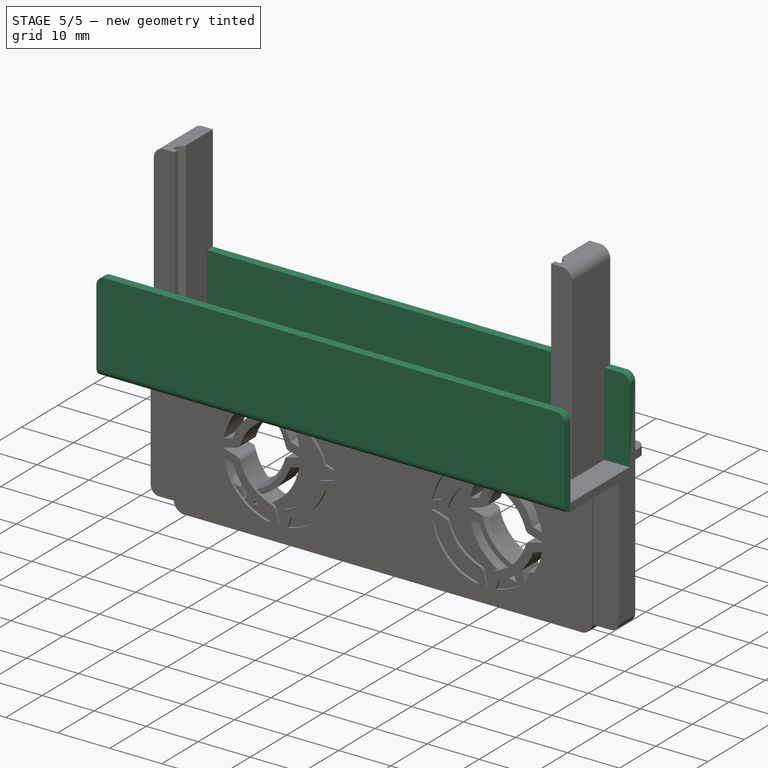
[diagram: stage 5 of 5 — iso view after this stage's code; geometry added in this stage tinted green]
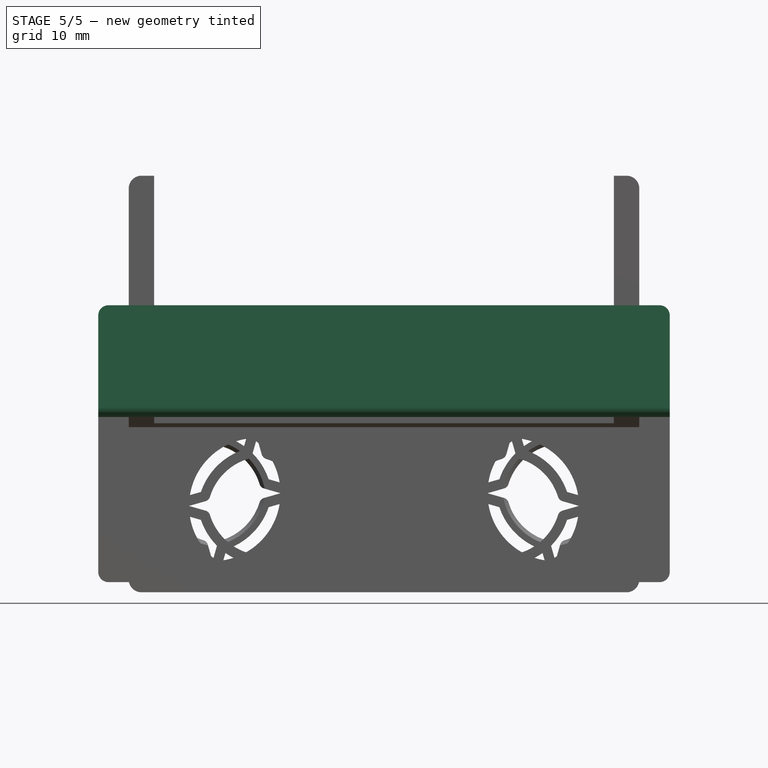
[diagram: stage 5 of 5 — front view after this stage's code; geometry added in this stage tinted green]
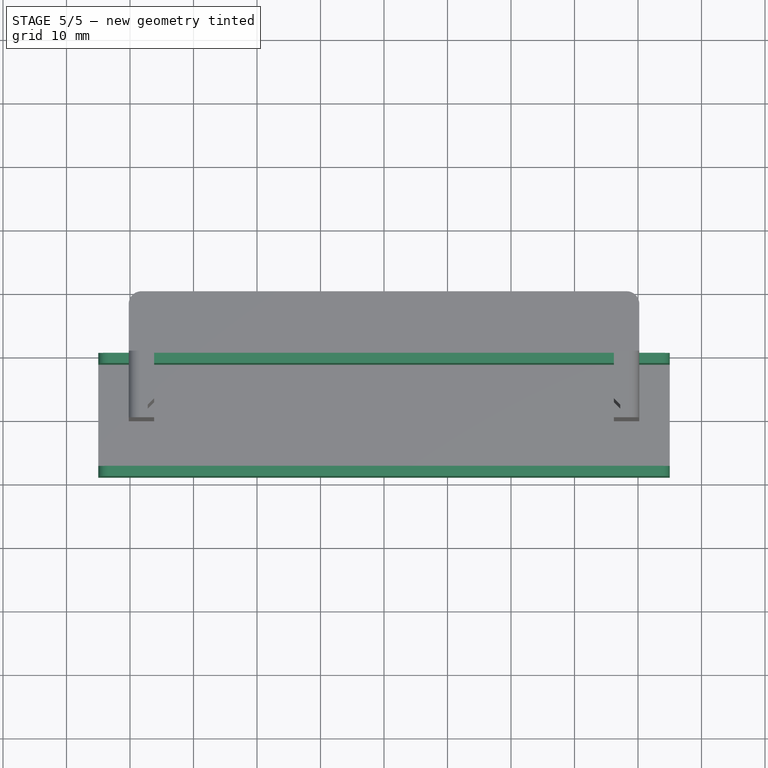
[diagram: stage 5 of 5 — top view after this stage's code; geometry added in this stage tinted green]
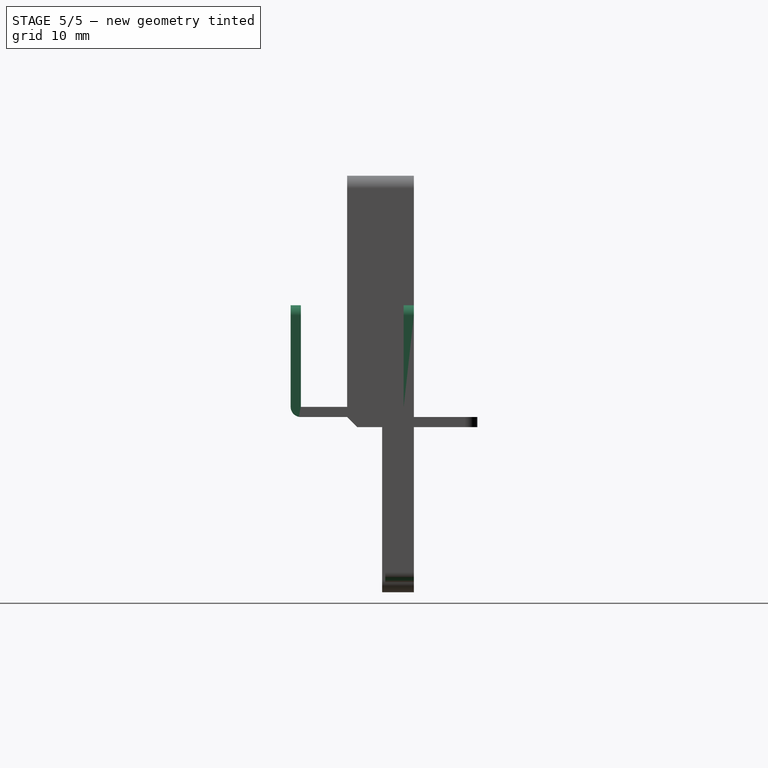
[diagram: stage 5 of 5 — right view after this stage's code; geometry added in this stage tinted green]
FEATURE [PartDesign::Pad] Pad002
  BaseFeature = -> Pad001
  Direction = (0,-1,-2e-16)
  Length = 1.6
  Length2 = 10
  Placement = pos=(0,0,0) rot=(1,0,0;1.5708rad)
  Profile = -> Sketch004
  ReferenceAxis = -> Sketch004 [N_Axis]
  Type = 0
FEATURE [PartDesign::Pad] Pad003
  BaseFeature = -> Pad002
  Direction = (0,-1,-2e-16)
  Length = 1.6
  Length2 = 10
  Placement = pos=(0,0,0) rot=(1,0,0;1.5708rad)
  Profile = -> Sketch005
  ReferenceAxis = -> Sketch005 [N_Axis]
  Refine = true
  Type = 0
FEATURE [PartDesign::Fillet] Fillet001
  Base = -> Pad003 [Edge291,Edge275,Edge119,Edge118,Edge276,Edge288,Edge287]
  BaseFeature = -> Pad003
  Placement = pos=(0,0,0) rot=(1,0,0;1.5708rad)
  Radius = 1.6
  SupportTransform = false
  UseAllEdges = false
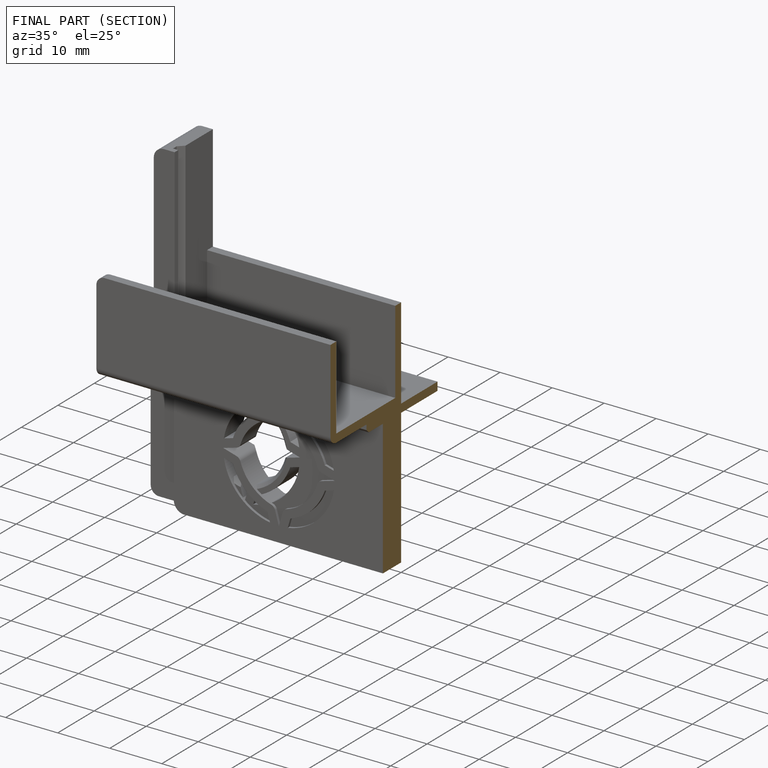
[diagram: finished part — half-section view (interior)]
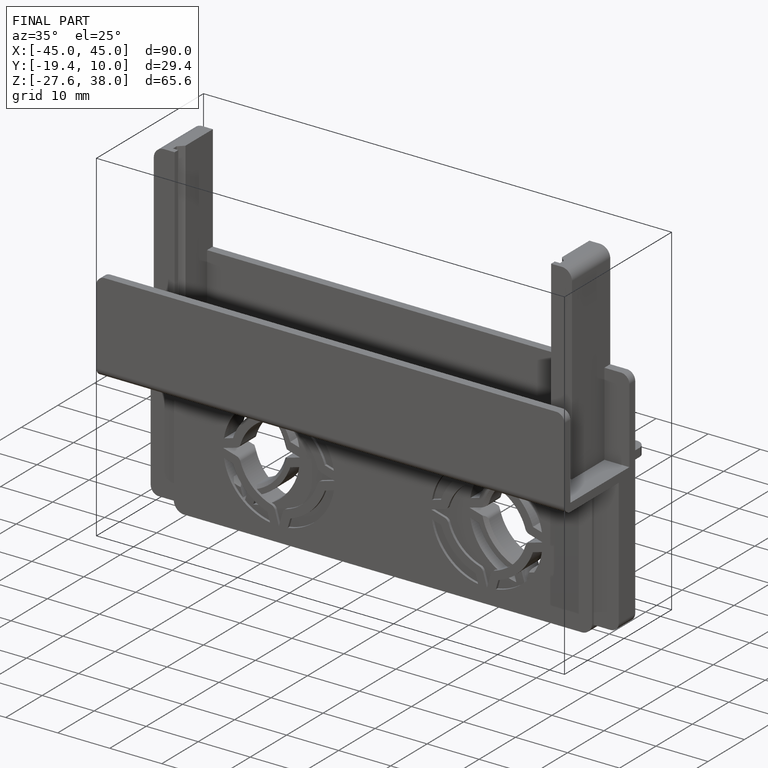
[diagram: finished part — iso view with bounding-box wireframe]
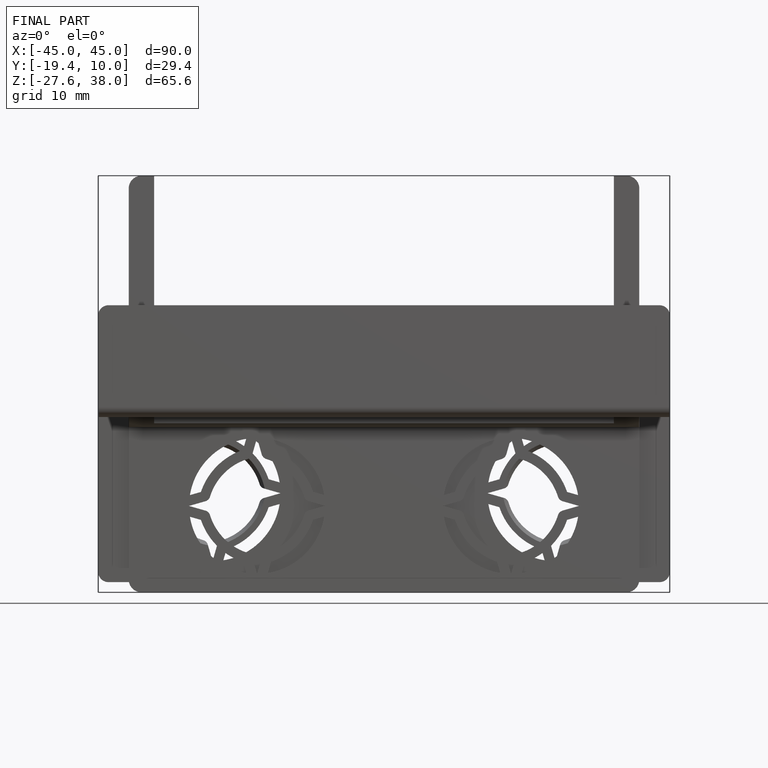
[diagram: finished part — front view with bounding-box wireframe]
